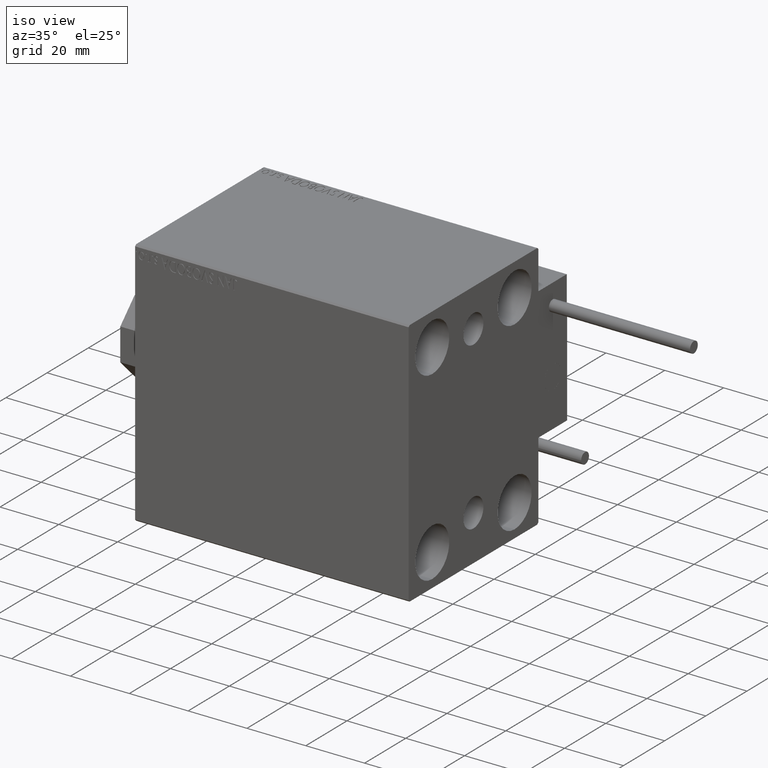
[diagram: clean part render]
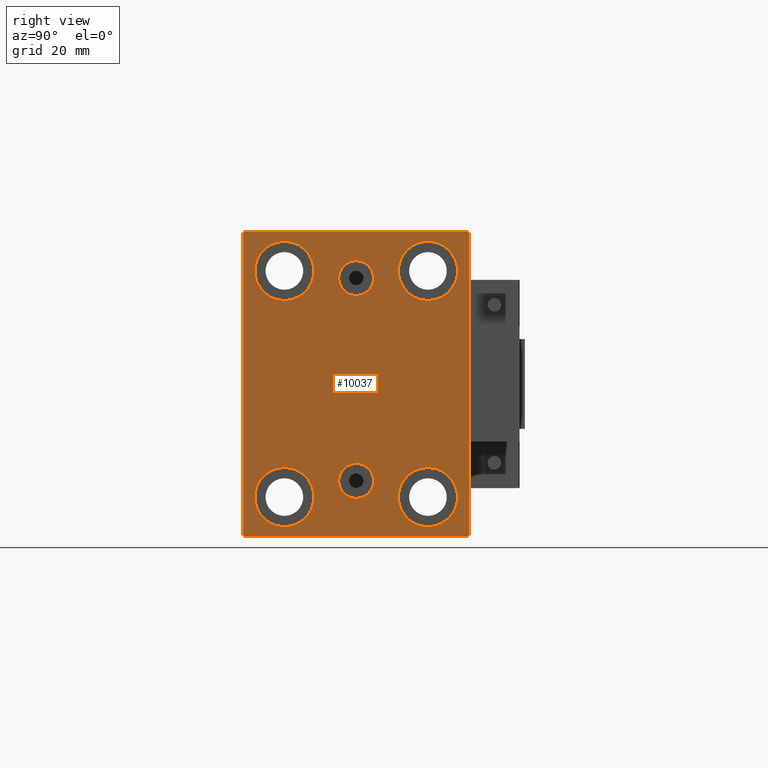
[diagram: tour spotlight — one face highlighted and labeled with its STEP entity id]
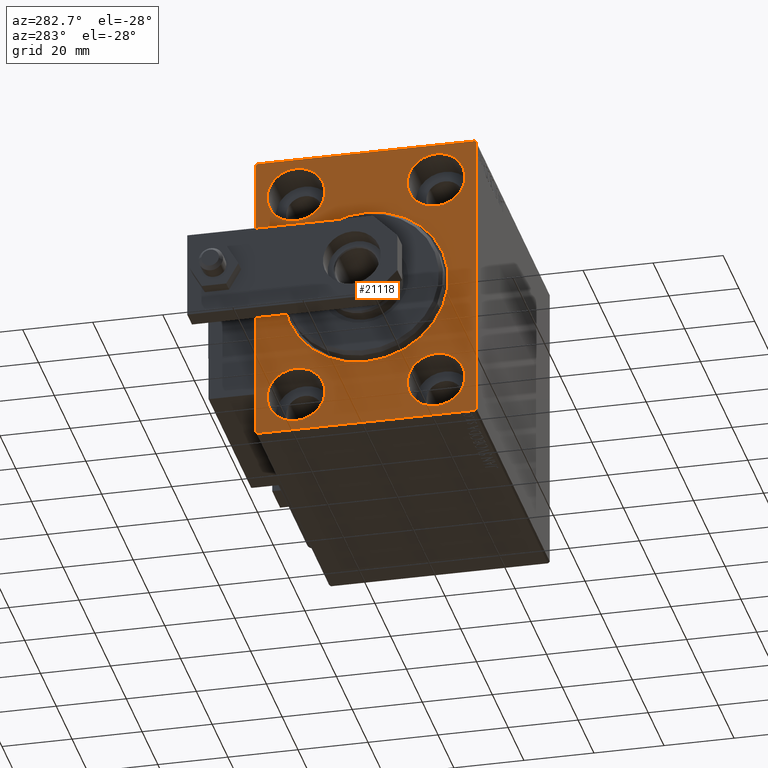
[diagram: tour spotlight — one face highlighted and labeled with its STEP entity id]
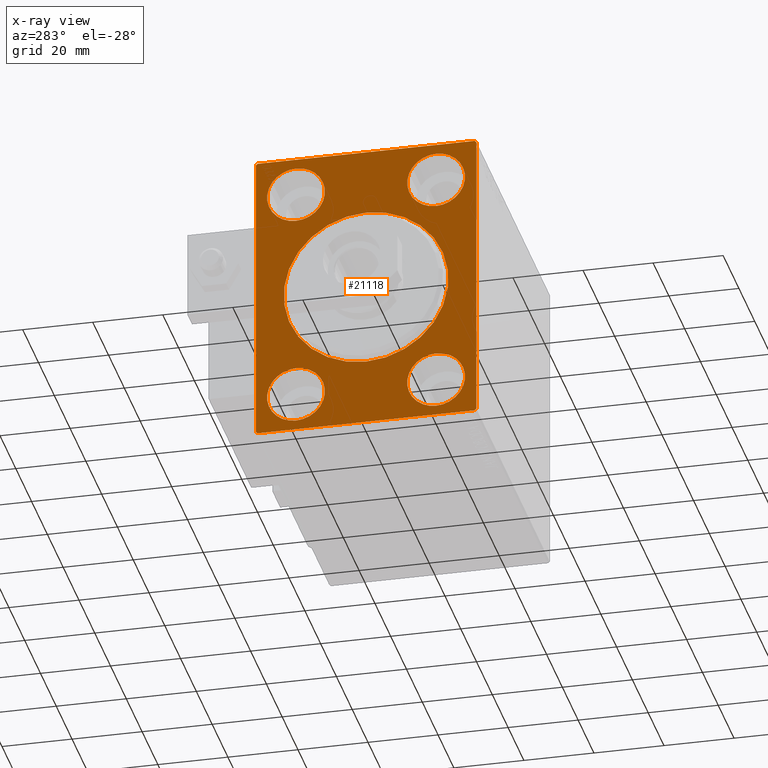
[diagram: x-ray of the same camera — body ghosted, this tour face saturated]
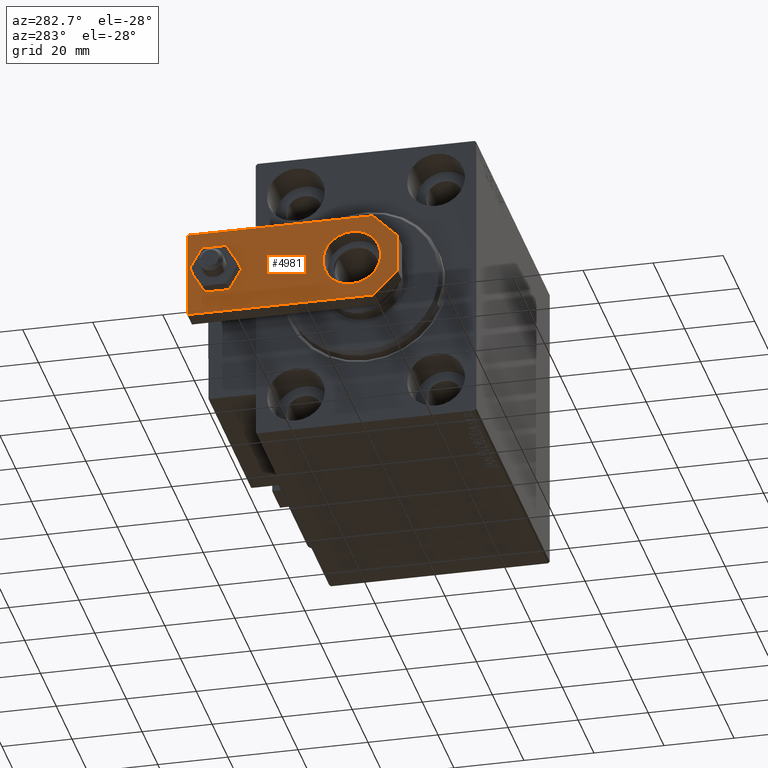
[diagram: tour spotlight — one face highlighted and labeled with its STEP entity id]
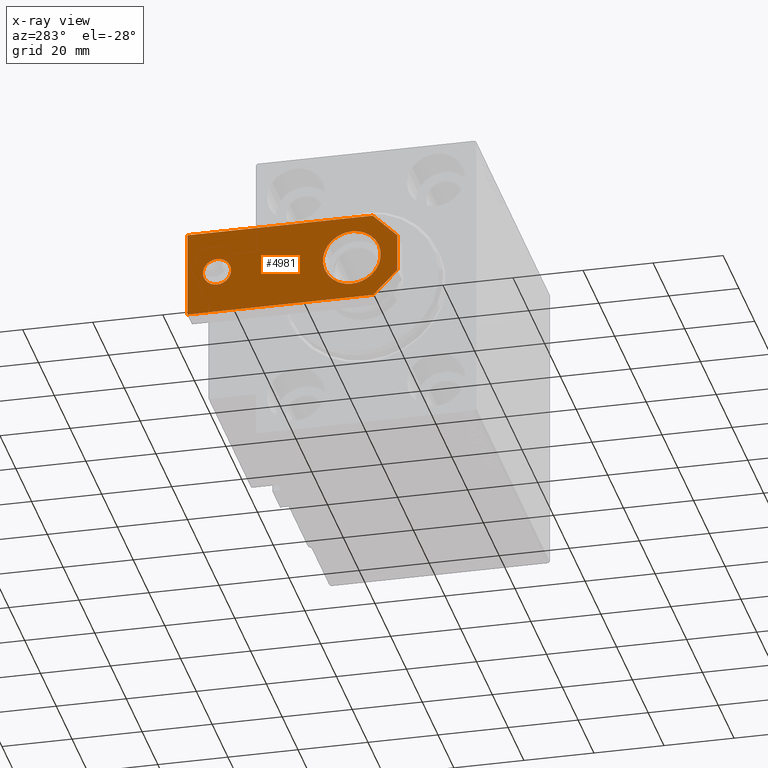
[diagram: x-ray of the same camera — body ghosted, this tour face saturated]
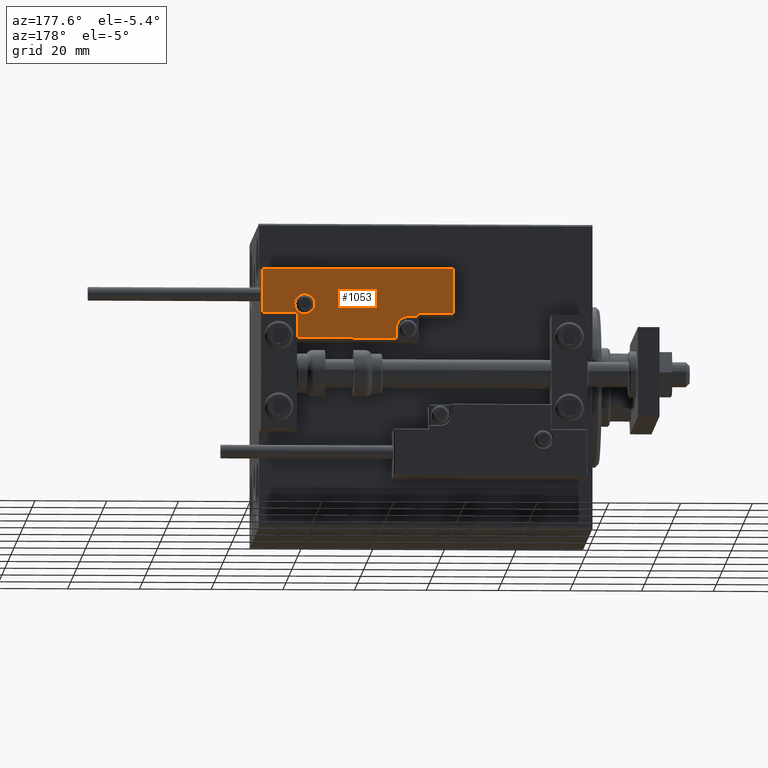
[diagram: tour spotlight — one face highlighted and labeled with its STEP entity id]
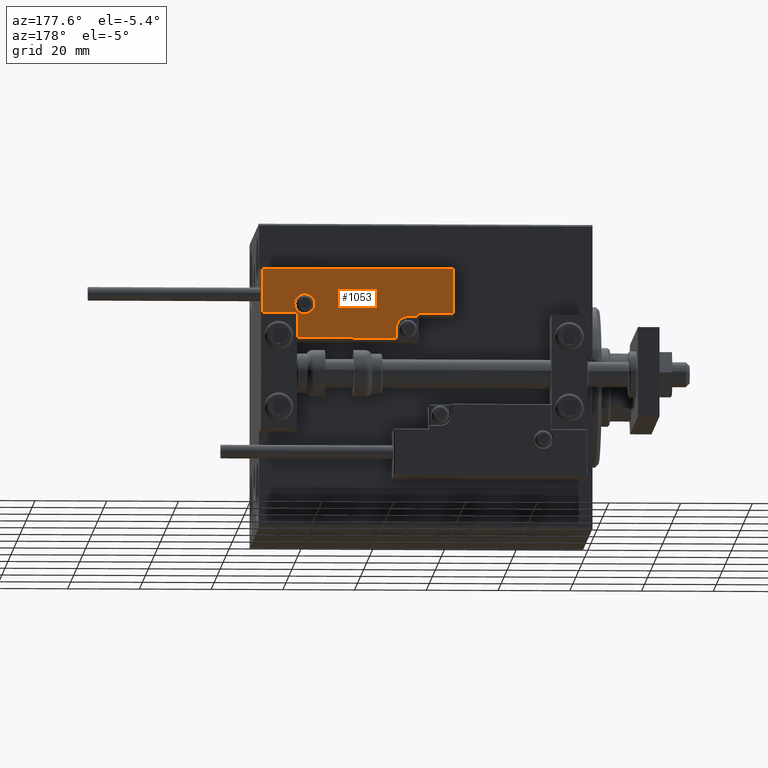
[diagram: tour spotlight — one face highlighted and labeled with its STEP entity id]
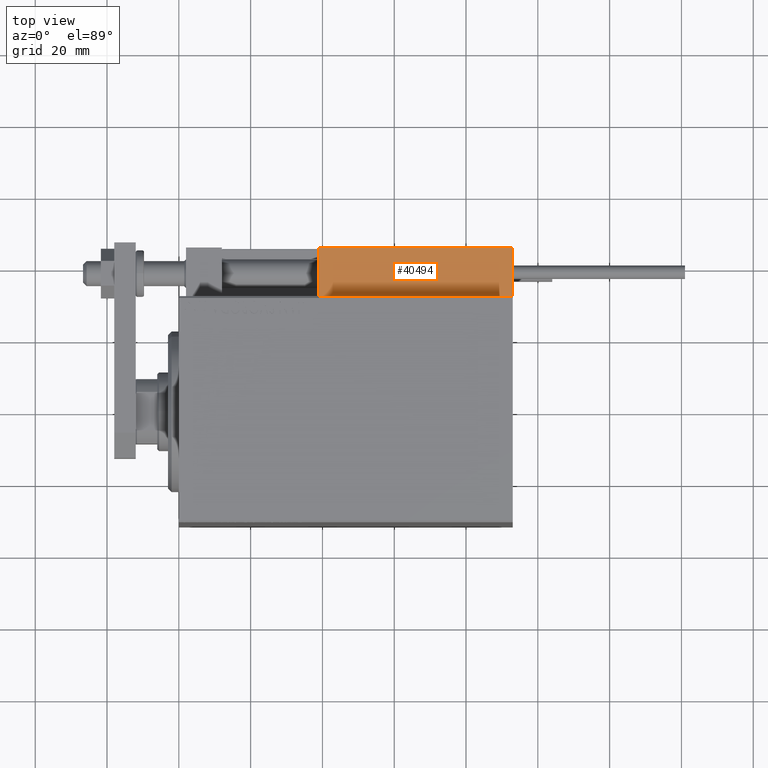
[diagram: tour spotlight — one face highlighted and labeled with its STEP entity id]
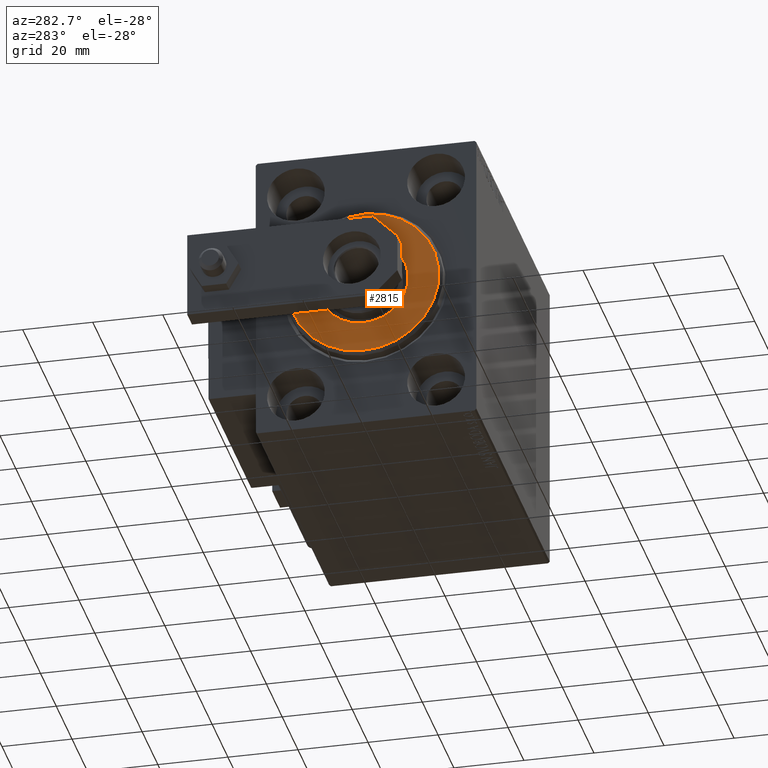
[diagram: tour spotlight — one face highlighted and labeled with its STEP entity id]
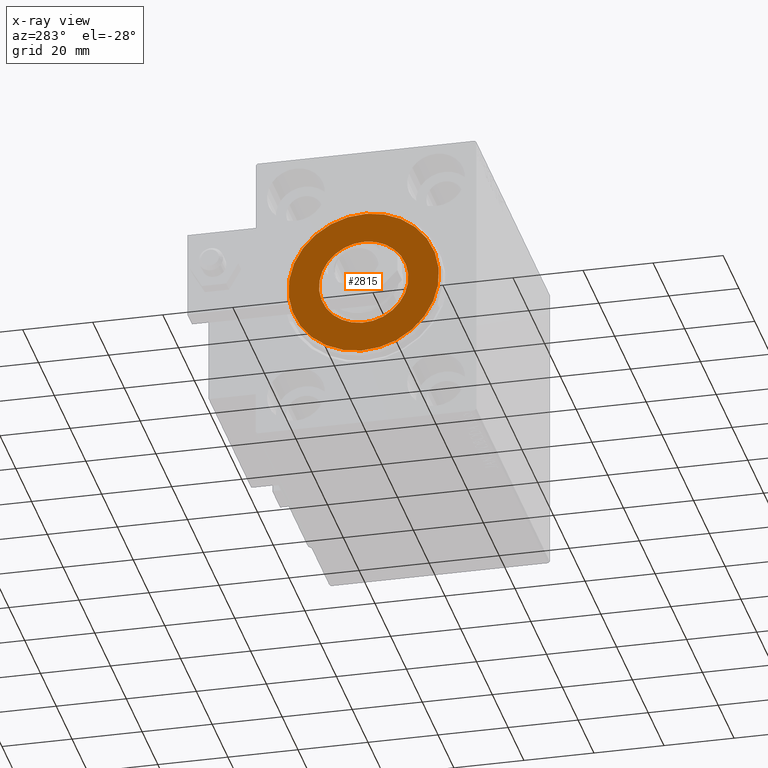
[diagram: x-ray of the same camera — body ghosted, this tour face saturated]
A machine part: a face-by-face anatomy tour. The part has 1278 B-rep faces; the first image is the clean iso view, then the 7 largest visible faces are spotlighted one at a time (largest first), each with its STEP entity span.

Face 1 — right view, entity #10037. In plain terms, the highlighted planar face has unit normal (1, 0, 0).
Definition (entity closure, byte-faithful):
#292 = CARTESIAN_POINT ( 'NONE',  ( 93.00000000000000000, -31.50000000000000000, -42.00000000000002132 ) ) ;
#335 = CARTESIAN_POINT ( 'NONE',  ( 93.00000000000000000, 31.50000000000000000, 41.99999999999999289 ) ) ;
#700 = CARTESIAN_POINT ( 'NONE',  ( 93.00000000000000000, -36.74999999999998579, 36.74999999999998579 ) ) ;
#1023 = EDGE_CURVE ( 'NONE', #12286, #48919, #22421, .T. ) ;
#1178 = CARTESIAN_POINT ( 'NONE',  ( 93.00000000000000000, -20.00000000000000355, -31.49999999999999289 ) ) ;
#1190 = LINE ( 'NONE', #700, #23470 ) ;
#1592 = DIRECTION ( 'NONE',  ( -1.000000000000000000, -0.000000000000000000, -0.000000000000000000 ) ) ;
#1595 = CARTESIAN_POINT ( 'NONE',  ( 93.00000000000000000, -19.99999999999999645, 31.50000000000000000 ) ) ;
#1712 = CARTESIAN_POINT ( 'NONE',  ( 93.00000000000000000, 31.50000000000001421, -42.50000000000000711 ) ) ;
#2276 = AXIS2_PLACEMENT_3D ( 'NONE', #32939, #6589, #2539 ) ;
#2519 = DIRECTION ( 'NONE',  ( 0.000000000000000000, -1.000000000000000000, -2.202823461557850341E-16 ) ) ;
#2539 = DIRECTION ( 'NONE',  ( 0.000000000000000000, 0.000000000000000000, 1.000000000000000000 ) ) ;
#2659 = CIRCLE ( 'NONE', #44701, 4.859999999999999432 ) ;
#2698 = FACE_BOUND ( 'NONE', #15721, .T. ) ;
#3079 = LINE ( 'NONE', #18541, #44742 ) ;
#3417 = CARTESIAN_POINT ( 'NONE',  ( 93.00000000000000000, 31.00000000000002842, -42.50000000000000711 ) ) ;
#3741 = VECTOR ( 'NONE', #25156, 1000.000000000000000 ) ;
#3857 = AXIS2_PLACEMENT_3D ( 'NONE', #34170, #7073, #15168 ) ;
#4165 = ORIENTED_EDGE ( 'NONE', *, *, #23487, .T. ) ;
#4742 = DIRECTION ( 'NONE',  ( 0.000000000000000000, -0.7071067811865474617, -0.7071067811865474617 ) ) ;
#4968 = DIRECTION ( 'NONE',  ( -1.000000000000000000, -0.000000000000000000, -0.000000000000000000 ) ) ;
#5060 = VERTEX_POINT ( 'NONE', #12074 ) ;
#5183 = CARTESIAN_POINT ( 'NONE',  ( 93.00000000000000000, -19.99999999999999645, 39.74999999999999289 ) ) ;
#5253 = CARTESIAN_POINT ( 'NONE',  ( 93.00000000000000000, 36.74999999999958789, -36.75000000000061107 ) ) ;
#5374 = CARTESIAN_POINT ( 'NONE',  ( 93.00000000000000000, 3.306546357697852550E-15, -31.85999999999998522 ) ) ;
#5462 = VERTEX_POINT ( 'NONE', #5374 ) ;
#6089 = EDGE_CURVE ( 'NONE', #13065, #6121, #48366, .T. ) ;
#6121 = VERTEX_POINT ( 'NONE', #29117 ) ;
#6170 = EDGE_LOOP ( 'NONE', ( #23145, #8247 ) ) ;
#6241 = DIRECTION ( 'NONE',  ( 1.000000000000000000, 0.000000000000000000, 0.000000000000000000 ) ) ;
#6394 = CIRCLE ( 'NONE', #41125, 8.250000000000000000 ) ;
#6402 = EDGE_CURVE ( 'NONE', #41942, #8803, #43263, .T. ) ;
#6589 = DIRECTION ( 'NONE',  ( -1.000000000000000000, -0.000000000000000000, -0.000000000000000000 ) ) ;
#6956 = ORIENTED_EDGE ( 'NONE', *, *, #49520, .T. ) ;
#7073 = DIRECTION ( 'NONE',  ( 1.000000000000000000, 0.000000000000000000, -0.000000000000000000 ) ) ;
#7141 = CARTESIAN_POINT ( 'NONE',  ( 93.00000000000000000, 20.00000000000000355, 39.74999999999999289 ) ) ;
#7625 = EDGE_CURVE ( 'NONE', #11511, #34679, #12778, .T. ) ;
#8247 = ORIENTED_EDGE ( 'NONE', *, *, #41226, .T. ) ;
#8351 = CIRCLE ( 'NONE', #16428, 8.249999999999992895 ) ;
#8576 = CARTESIAN_POINT ( 'NONE',  ( 93.00000000000000000, -3.571693674697836683E-15, 24.64000000000001123 ) ) ;
#8580 = DIRECTION ( 'NONE',  ( -0.000000000000000000, 0.7071067811865573427, 0.7071067811865376918 ) ) ;
#8726 = VECTOR ( 'NONE', #2519, 1000.000000000000000 ) ;
#8803 = VERTEX_POINT ( 'NONE', #10157 ) ;
#9230 = EDGE_CURVE ( 'NONE', #26646, #29247, #6394, .T. ) ;
#9724 = CARTESIAN_POINT ( 'NONE',  ( 93.00000000000000000, -31.50000000000000000, 42.49999999999999289 ) ) ;
#10037 = ADVANCED_FACE ( 'NONE', ( #34096, #2698, #41686, #37389, #10822, #30302, #26513 ), #33848, .T. ) ;
#10157 = CARTESIAN_POINT ( 'NONE',  ( 93.00000000000000000, 31.50000000000001421, -42.00000000000003553 ) ) ;
#10273 = AXIS2_PLACEMENT_3D ( 'NONE', #33707, #29923, #15222 ) ;
#10822 = FACE_BOUND ( 'NONE', #36667, .T. ) ;
#11511 = VERTEX_POINT ( 'NONE', #7141 ) ;
#11913 = EDGE_CURVE ( 'NONE', #19179, #41942, #39890, .T. ) ;
#12074 = CARTESIAN_POINT ( 'NONE',  ( 93.00000000000000000, -2.976515330312223011E-15, 34.36000000000000654 ) ) ;
#12286 = VERTEX_POINT ( 'NONE', #24652 ) ;
#12328 = ORIENTED_EDGE ( 'NONE', *, *, #11913, .T. ) ;
#12626 = EDGE_CURVE ( 'NONE', #34679, #11511, #32241, .T. ) ;
#12778 = CIRCLE ( 'NONE', #2276, 8.249999999999992895 ) ;
#12859 = DIRECTION ( 'NONE',  ( 0.000000000000000000, 0.000000000000000000, 1.000000000000000000 ) ) ;
#13065 = VERTEX_POINT ( 'NONE', #30405 ) ;
#13196 = DIRECTION ( 'NONE',  ( 0.000000000000000000, 0.000000000000000000, 1.000000000000000000 ) ) ;
#13565 = VECTOR ( 'NONE', #8580, 1000.000000000000114 ) ;
#13857 = CARTESIAN_POINT ( 'NONE',  ( 93.00000000000000000, 0.000000000000000000, 0.000000000000000000 ) ) ;
#14354 = DIRECTION ( 'NONE',  ( 0.000000000000000000, 0.000000000000000000, -1.000000000000000000 ) ) ;
#14374 = DIRECTION ( 'NONE',  ( 0.000000000000000000, -1.632680918566406300E-16, 1.000000000000000000 ) ) ;
#14702 = EDGE_CURVE ( 'NONE', #16493, #13065, #23947, .T. ) ;
#15069 = ORIENTED_EDGE ( 'NONE', *, *, #43958, .T. ) ;
#15168 = DIRECTION ( 'NONE',  ( 0.000000000000000000, 0.000000000000000000, 1.000000000000000000 ) ) ;
#15222 = DIRECTION ( 'NONE',  ( 0.000000000000000000, 0.000000000000000000, 1.000000000000000000 ) ) ;
#15353 = CARTESIAN_POINT ( 'NONE',  ( 93.00000000000000000, 36.75000000000044054, 36.74999999999941735 ) ) ;
#15667 = CARTESIAN_POINT ( 'NONE',  ( 93.00000000000000000, -20.00000000000000355, -39.74999999999999289 ) ) ;
#15721 = EDGE_LOOP ( 'NONE', ( #31706, #25419 ) ) ;
#15871 = CARTESIAN_POINT ( 'NONE',  ( 93.00000000000000000, -20.00000000000000355, -23.24999999999999289 ) ) ;
#15878 = CIRCLE ( 'NONE', #47451, 4.859999999999999432 ) ;
#16007 = EDGE_CURVE ( 'NONE', #6121, #36412, #1190, .T. ) ;
#16071 = AXIS2_PLACEMENT_3D ( 'NONE', #32181, #24591, #13196 ) ;
#16246 = EDGE_LOOP ( 'NONE', ( #46683, #36550 ) ) ;
#16300 = DIRECTION ( 'NONE',  ( 0.000000000000000000, 0.000000000000000000, 1.000000000000000000 ) ) ;
#16428 = AXIS2_PLACEMENT_3D ( 'NONE', #1595, #36040, #44386 ) ;
#16493 = VERTEX_POINT ( 'NONE', #335 ) ;
#17050 = LINE ( 'NONE', #9724, #3741 ) ;
#17089 = CARTESIAN_POINT ( 'NONE',  ( 93.00000000000000000, -3.571693674697836683E-15, 29.50000000000001066 ) ) ;
#17355 = CARTESIAN_POINT ( 'NONE',  ( 93.00000000000000000, -31.50000000000000000, -42.50000000000000711 ) ) ;
#17411 = CARTESIAN_POINT ( 'NONE',  ( 93.00000000000000000, -3.571693674697836683E-15, 29.50000000000001066 ) ) ;
#17917 = DIRECTION ( 'NONE',  ( 0.000000000000000000, 0.000000000000000000, -1.000000000000000000 ) ) ;
#18354 = AXIS2_PLACEMENT_3D ( 'NONE', #20365, #1592, #21099 ) ;
#18392 = CIRCLE ( 'NONE', #3857, 4.859999999999995879 ) ;
#18541 = CARTESIAN_POINT ( 'NONE',  ( 93.00000000000000000, -36.75000000000045475, -36.74999999999943867 ) ) ;
#18783 = CARTESIAN_POINT ( 'NONE',  ( 93.00000000000000000, -31.50000000000000000, 41.99999999999997868 ) ) ;
#19179 = VERTEX_POINT ( 'NONE', #27626 ) ;
#19910 = CARTESIAN_POINT ( 'NONE',  ( 93.00000000000000000, 20.00000000000000355, 23.25000000000000355 ) ) ;
#20365 = CARTESIAN_POINT ( 'NONE',  ( 93.00000000000000000, -20.00000000000000355, -31.49999999999999289 ) ) ;
#20632 = EDGE_LOOP ( 'NONE', ( #48709, #35851, #41400, #39056, #12328, #27416, #46332, #29225 ) ) ;
#20702 = CIRCLE ( 'NONE', #48198, 8.250000000000000000 ) ;
#21099 = DIRECTION ( 'NONE',  ( 0.000000000000000000, 0.000000000000000000, 1.000000000000000000 ) ) ;
#21197 = DIRECTION ( 'NONE',  ( -1.000000000000000000, -0.000000000000000000, -0.000000000000000000 ) ) ;
#22246 = VERTEX_POINT ( 'NONE', #23515 ) ;
#22421 = CIRCLE ( 'NONE', #10273, 8.250000000000000000 ) ;
#22480 = CIRCLE ( 'NONE', #45086, 8.249999999999992895 ) ;
#22482 = ORIENTED_EDGE ( 'NONE', *, *, #9230, .T. ) ;
#23019 = EDGE_CURVE ( 'NONE', #5060, #29229, #2659, .T. ) ;
#23029 = EDGE_CURVE ( 'NONE', #8803, #16493, #49058, .T. ) ;
#23145 = ORIENTED_EDGE ( 'NONE', *, *, #1023, .T. ) ;
#23470 = VECTOR ( 'NONE', #4742, 1000.000000000000114 ) ;
#23487 = EDGE_CURVE ( 'NONE', #22246, #34726, #8351, .T. ) ;
#23515 = CARTESIAN_POINT ( 'NONE',  ( 93.00000000000000000, -19.99999999999999645, 23.25000000000000355 ) ) ;
#23947 = LINE ( 'NONE', #15353, #29898 ) ;
#23986 = DIRECTION ( 'NONE',  ( 0.000000000000000000, 0.000000000000000000, 1.000000000000000000 ) ) ;
#24591 = DIRECTION ( 'NONE',  ( -1.000000000000000000, -0.000000000000000000, -0.000000000000000000 ) ) ;
#24652 = CARTESIAN_POINT ( 'NONE',  ( 93.00000000000000000, 19.99999999999999645, -39.74999999999999289 ) ) ;
#25156 = DIRECTION ( 'NONE',  ( 0.000000000000000000, 0.000000000000000000, -1.000000000000000000 ) ) ;
#25419 = ORIENTED_EDGE ( 'NONE', *, *, #45311, .F. ) ;
#25842 = CARTESIAN_POINT ( 'NONE',  ( 93.00000000000000000, 3.306546357697852550E-15, -26.99999999999998934 ) ) ;
#26513 = FACE_OUTER_BOUND ( 'NONE', #20632, .T. ) ;
#26546 = VECTOR ( 'NONE', #48244, 1000.000000000000000 ) ;
#26646 = VERTEX_POINT ( 'NONE', #15871 ) ;
#27416 = ORIENTED_EDGE ( 'NONE', *, *, #6402, .T. ) ;
#27626 = CARTESIAN_POINT ( 'NONE',  ( 93.00000000000000000, -31.00000000000002842, -42.50000000000000711 ) ) ;
#29117 = CARTESIAN_POINT ( 'NONE',  ( 93.00000000000000000, -30.99999999999998579, 42.49999999999999289 ) ) ;
#29225 = ORIENTED_EDGE ( 'NONE', *, *, #14702, .T. ) ;
#29229 = VERTEX_POINT ( 'NONE', #8576 ) ;
#29247 = VERTEX_POINT ( 'NONE', #15667 ) ;
#29898 = VECTOR ( 'NONE', #31791, 999.9999999999998863 ) ;
#29923 = DIRECTION ( 'NONE',  ( -1.000000000000000000, -0.000000000000000000, -0.000000000000000000 ) ) ;
#30302 = FACE_BOUND ( 'NONE', #36078, .T. ) ;
#30405 = CARTESIAN_POINT ( 'NONE',  ( 93.00000000000000000, 31.00000000000000000, 42.50000000000000711 ) ) ;
#30784 = CARTESIAN_POINT ( 'NONE',  ( 93.00000000000000000, 19.99999999999999645, -23.24999999999999289 ) ) ;
#31517 = EDGE_CURVE ( 'NONE', #5462, #39705, #36863, .T. ) ;
#31706 = ORIENTED_EDGE ( 'NONE', *, *, #31517, .F. ) ;
#31791 = DIRECTION ( 'NONE',  ( -0.000000000000000000, -0.7071067811865376918, 0.7071067811865574537 ) ) ;
#32181 = CARTESIAN_POINT ( 'NONE',  ( 93.00000000000000000, 20.00000000000000355, 31.50000000000000000 ) ) ;
#32201 = ORIENTED_EDGE ( 'NONE', *, *, #12626, .T. ) ;
#32241 = CIRCLE ( 'NONE', #16071, 8.249999999999992895 ) ;
#32249 = AXIS2_PLACEMENT_3D ( 'NONE', #13857, #6241, #14354 ) ;
#32939 = CARTESIAN_POINT ( 'NONE',  ( 93.00000000000000000, 20.00000000000000355, 31.50000000000000000 ) ) ;
#33707 = CARTESIAN_POINT ( 'NONE',  ( 93.00000000000000000, 19.99999999999999645, -31.49999999999999289 ) ) ;
#33848 = PLANE ( 'NONE',  #32249 ) ;
#33939 = DIRECTION ( 'NONE',  ( 1.000000000000000000, 0.000000000000000000, -0.000000000000000000 ) ) ;
#34096 = FACE_BOUND ( 'NONE', #16246, .T. ) ;
#34170 = CARTESIAN_POINT ( 'NONE',  ( 93.00000000000000000, 3.306546357697852550E-15, -26.99999999999998934 ) ) ;
#34550 = CIRCLE ( 'NONE', #18354, 8.250000000000000000 ) ;
#34679 = VERTEX_POINT ( 'NONE', #19910 ) ;
#34726 = VERTEX_POINT ( 'NONE', #5183 ) ;
#34808 = DIRECTION ( 'NONE',  ( -1.000000000000000000, -0.000000000000000000, -0.000000000000000000 ) ) ;
#35067 = EDGE_CURVE ( 'NONE', #46012, #19179, #3079, .T. ) ;
#35851 = ORIENTED_EDGE ( 'NONE', *, *, #16007, .T. ) ;
#35884 = CARTESIAN_POINT ( 'NONE',  ( 93.00000000000000000, -19.99999999999999645, 31.50000000000000000 ) ) ;
#36040 = DIRECTION ( 'NONE',  ( -1.000000000000000000, -0.000000000000000000, -0.000000000000000000 ) ) ;
#36078 = EDGE_LOOP ( 'NONE', ( #15069, #22482 ) ) ;
#36086 = DIRECTION ( 'NONE',  ( 1.000000000000000000, 0.000000000000000000, 0.000000000000000000 ) ) ;
#36412 = VERTEX_POINT ( 'NONE', #18783 ) ;
#36550 = ORIENTED_EDGE ( 'NONE', *, *, #23019, .F. ) ;
#36667 = EDGE_LOOP ( 'NONE', ( #32201, #36686 ) ) ;
#36686 = ORIENTED_EDGE ( 'NONE', *, *, #7625, .T. ) ;
#36863 = CIRCLE ( 'NONE', #46596, 4.859999999999995879 ) ;
#37157 = DIRECTION ( 'NONE',  ( 1.000000000000000000, 0.000000000000000000, 0.000000000000000000 ) ) ;
#37389 = FACE_BOUND ( 'NONE', #44474, .T. ) ;
#37462 = CARTESIAN_POINT ( 'NONE',  ( 93.00000000000000000, 31.50000000000000000, 42.50000000000000711 ) ) ;
#39056 = ORIENTED_EDGE ( 'NONE', *, *, #35067, .T. ) ;
#39705 = VERTEX_POINT ( 'NONE', #48053 ) ;
#39846 = VECTOR ( 'NONE', #14374, 1000.000000000000000 ) ;
#39890 = LINE ( 'NONE', #17355, #26546 ) ;
#41125 = AXIS2_PLACEMENT_3D ( 'NONE', #1178, #4968, #23986 ) ;
#41226 = EDGE_CURVE ( 'NONE', #48919, #12286, #20702, .T. ) ;
#41400 = ORIENTED_EDGE ( 'NONE', *, *, #42166, .T. ) ;
#41686 = FACE_BOUND ( 'NONE', #6170, .T. ) ;
#41815 = DIRECTION ( 'NONE',  ( -0.000000000000000000, 0.7071067811865376918, -0.7071067811865573427 ) ) ;
#41942 = VERTEX_POINT ( 'NONE', #3417 ) ;
#42166 = EDGE_CURVE ( 'NONE', #36412, #46012, #17050, .T. ) ;
#42718 = EDGE_CURVE ( 'NONE', #29229, #5060, #15878, .T. ) ;
#43263 = LINE ( 'NONE', #5253, #13565 ) ;
#43958 = EDGE_CURVE ( 'NONE', #29247, #26646, #34550, .T. ) ;
#44386 = DIRECTION ( 'NONE',  ( 0.000000000000000000, 0.000000000000000000, 1.000000000000000000 ) ) ;
#44436 = DIRECTION ( 'NONE',  ( 0.000000000000000000, 0.000000000000000000, -1.000000000000000000 ) ) ;
#44474 = EDGE_LOOP ( 'NONE', ( #4165, #6956 ) ) ;
#44701 = AXIS2_PLACEMENT_3D ( 'NONE', #17411, #37157, #17917 ) ;
#44742 = VECTOR ( 'NONE', #41815, 1000.000000000000114 ) ;
#45086 = AXIS2_PLACEMENT_3D ( 'NONE', #35884, #21197, #12859 ) ;
#45311 = EDGE_CURVE ( 'NONE', #39705, #5462, #18392, .T. ) ;
#46012 = VERTEX_POINT ( 'NONE', #292 ) ;
#46332 = ORIENTED_EDGE ( 'NONE', *, *, #23029, .T. ) ;
#46596 = AXIS2_PLACEMENT_3D ( 'NONE', #25842, #33939, #49382 ) ;
#46683 = ORIENTED_EDGE ( 'NONE', *, *, #42718, .F. ) ;
#47207 = CARTESIAN_POINT ( 'NONE',  ( 93.00000000000000000, 19.99999999999999645, -31.49999999999999289 ) ) ;
#47451 = AXIS2_PLACEMENT_3D ( 'NONE', #17089, #36086, #44436 ) ;
#48053 = CARTESIAN_POINT ( 'NONE',  ( 93.00000000000000000, 3.901724702083465828E-15, -22.13999999999999346 ) ) ;
#48198 = AXIS2_PLACEMENT_3D ( 'NONE', #47207, #34808, #16300 ) ;
#48244 = DIRECTION ( 'NONE',  ( 0.000000000000000000, 1.000000000000000000, 0.000000000000000000 ) ) ;
#48366 = LINE ( 'NONE', #37462, #8726 ) ;
#48709 = ORIENTED_EDGE ( 'NONE', *, *, #6089, .T. ) ;
#48919 = VERTEX_POINT ( 'NONE', #30784 ) ;
#49058 = LINE ( 'NONE', #1712, #39846 ) ;
#49382 = DIRECTION ( 'NONE',  ( 0.000000000000000000, 0.000000000000000000, 1.000000000000000000 ) ) ;
#49520 = EDGE_CURVE ( 'NONE', #34726, #22246, #22480, .T. ) ;

Face 2 — auxiliary view, entity #21118. An x-ray twin of the same camera follows (body ghosted, this face saturated) — the face is partly hidden behind the body. In plain terms, the highlighted planar face has unit normal (1, 0, 0).
Definition (entity closure, byte-faithful):
#188 = LINE ( 'NONE', #19702, #30288 ) ;
#222 = VERTEX_POINT ( 'NONE', #37447 ) ;
#419 = CARTESIAN_POINT ( 'NONE',  ( 0.000000000000000000, 19.99999999999999645, -31.49999999999999289 ) ) ;
#532 = CARTESIAN_POINT ( 'NONE',  ( 0.000000000000000000, 31.00000000000000000, 42.50000000000000711 ) ) ;
#691 = VERTEX_POINT ( 'NONE', #4617 ) ;
#907 = CARTESIAN_POINT ( 'NONE',  ( 0.000000000000000000, 31.50000000000001421, -42.00000000000003553 ) ) ;
#911 = DIRECTION ( 'NONE',  ( 0.000000000000000000, 0.000000000000000000, -1.000000000000000000 ) ) ;
#1301 = EDGE_CURVE ( 'NONE', #30237, #10219, #14319, .T. ) ;
#2162 = AXIS2_PLACEMENT_3D ( 'NONE', #14782, #30235, #7187 ) ;
#2259 = AXIS2_PLACEMENT_3D ( 'NONE', #22340, #41070, #9955 ) ;
#2614 = DIRECTION ( 'NONE',  ( 0.000000000000000000, 0.000000000000000000, 1.000000000000000000 ) ) ;
#2837 = DIRECTION ( 'NONE',  ( 0.000000000000000000, 0.000000000000000000, 1.000000000000000000 ) ) ;
#3312 = EDGE_LOOP ( 'NONE', ( #16365, #18343 ) ) ;
#3384 = EDGE_CURVE ( 'NONE', #222, #6538, #32520, .T. ) ;
#3716 = LINE ( 'NONE', #42211, #39706 ) ;
#3759 = CIRCLE ( 'NONE', #2162, 8.250000000000000000 ) ;
#4437 = EDGE_CURVE ( 'NONE', #21950, #48468, #3759, .T. ) ;
#4612 = VECTOR ( 'NONE', #8021, 999.9999999999998863 ) ;
#4617 = CARTESIAN_POINT ( 'NONE',  ( 0.000000000000000000, 31.50000000000000000, 41.99999999999999289 ) ) ;
#4634 = AXIS2_PLACEMENT_3D ( 'NONE', #15125, #26794, #46516 ) ;
#5117 = EDGE_CURVE ( 'NONE', #11554, #691, #47253, .T. ) ;
#5366 = VECTOR ( 'NONE', #32016, 1000.000000000000114 ) ;
#5807 = DIRECTION ( 'NONE',  ( 1.000000000000000000, 0.000000000000000000, 0.000000000000000000 ) ) ;
#5822 = FACE_BOUND ( 'NONE', #46576, .T. ) ;
#6078 = FACE_BOUND ( 'NONE', #3312, .T. ) ;
#6270 = CARTESIAN_POINT ( 'NONE',  ( 0.000000000000000000, -30.99999999999998579, 42.49999999999999289 ) ) ;
#6538 = VERTEX_POINT ( 'NONE', #23662 ) ;
#6827 = EDGE_CURVE ( 'NONE', #16800, #7323, #17605, .T. ) ;
#7187 = DIRECTION ( 'NONE',  ( 0.000000000000000000, 0.000000000000000000, 1.000000000000000000 ) ) ;
#7323 = VERTEX_POINT ( 'NONE', #38047 ) ;
#7706 = VERTEX_POINT ( 'NONE', #37995 ) ;
#8021 = DIRECTION ( 'NONE',  ( -0.000000000000000000, 0.7071067811865376918, -0.7071067811865574537 ) ) ;
#8526 = LINE ( 'NONE', #907, #8666 ) ;
#8666 = VECTOR ( 'NONE', #47006, 1000.000000000000114 ) ;
#9614 = EDGE_CURVE ( 'NONE', #48468, #21950, #20937, .T. ) ;
#9955 = DIRECTION ( 'NONE',  ( 0.000000000000000000, 0.000000000000000000, -1.000000000000000000 ) ) ;
#10219 = VERTEX_POINT ( 'NONE', #39135 ) ;
#10736 = EDGE_LOOP ( 'NONE', ( #30224, #17927 ) ) ;
#10805 = DIRECTION ( 'NONE',  ( -0.000000000000000000, 0.7071067811865474617, 0.7071067811865474617 ) ) ;
#11192 = CIRCLE ( 'NONE', #49997, 8.249999999999992895 ) ;
#11384 = EDGE_CURVE ( 'NONE', #45487, #12237, #11192, .T. ) ;
#11554 = VERTEX_POINT ( 'NONE', #532 ) ;
#11675 = DIRECTION ( 'NONE',  ( 0.000000000000000000, 0.000000000000000000, 1.000000000000000000 ) ) ;
#11827 = DIRECTION ( 'NONE',  ( 0.000000000000000000, -1.632680918566406300E-16, 1.000000000000000000 ) ) ;
#11836 = EDGE_CURVE ( 'NONE', #44245, #6538, #31563, .T. ) ;
#12091 = CIRCLE ( 'NONE', #22603, 8.249999999999992895 ) ;
#12237 = VERTEX_POINT ( 'NONE', #43649 ) ;
#12586 = AXIS2_PLACEMENT_3D ( 'NONE', #18864, #18102, #33548 ) ;
#12775 = ORIENTED_EDGE ( 'NONE', *, *, #6827, .F. ) ;
#13173 = DIRECTION ( 'NONE',  ( 0.000000000000000000, 0.000000000000000000, -1.000000000000000000 ) ) ;
#13593 = ORIENTED_EDGE ( 'NONE', *, *, #3384, .T. ) ;
#13629 = EDGE_CURVE ( 'NONE', #26668, #32854, #12091, .T. ) ;
#13916 = CARTESIAN_POINT ( 'NONE',  ( 0.000000000000000000, -20.00000000000000355, -39.74999999999999289 ) ) ;
#13934 = FACE_OUTER_BOUND ( 'NONE', #15063, .T. ) ;
#14063 = VECTOR ( 'NONE', #10805, 1000.000000000000114 ) ;
#14186 = FACE_BOUND ( 'NONE', #31075, .T. ) ;
#14200 = ORIENTED_EDGE ( 'NONE', *, *, #37343, .F. ) ;
#14319 = CIRCLE ( 'NONE', #40175, 23.50000000000001776 ) ;
#14782 = CARTESIAN_POINT ( 'NONE',  ( 0.000000000000000000, -20.00000000000000355, -31.49999999999999289 ) ) ;
#15063 = EDGE_LOOP ( 'NONE', ( #32661, #15560, #14200, #40836, #33084, #47223, #48564, #13593 ) ) ;
#15125 = CARTESIAN_POINT ( 'NONE',  ( 0.000000000000000000, -19.99999999999999645, 31.50000000000000000 ) ) ;
#15560 = ORIENTED_EDGE ( 'NONE', *, *, #36010, .T. ) ;
#16365 = ORIENTED_EDGE ( 'NONE', *, *, #40020, .F. ) ;
#16367 = CARTESIAN_POINT ( 'NONE',  ( 0.000000000000000000, 20.00000000000000355, 23.25000000000000355 ) ) ;
#16479 = CARTESIAN_POINT ( 'NONE',  ( 0.000000000000000000, -31.50000000000000000, 41.99999999999997868 ) ) ;
#16800 = VERTEX_POINT ( 'NONE', #30669 ) ;
#17049 = CIRCLE ( 'NONE', #36456, 8.250000000000000000 ) ;
#17531 = DIRECTION ( 'NONE',  ( -1.000000000000000000, 0.000000000000000000, 0.000000000000000000 ) ) ;
#17605 = CIRCLE ( 'NONE', #21616, 8.250000000000000000 ) ;
#17927 = ORIENTED_EDGE ( 'NONE', *, *, #47767, .F. ) ;
#18102 = DIRECTION ( 'NONE',  ( -1.000000000000000000, 0.000000000000000000, 0.000000000000000000 ) ) ;
#18259 = EDGE_CURVE ( 'NONE', #45898, #691, #3716, .T. ) ;
#18309 = EDGE_CURVE ( 'NONE', #7323, #16800, #17049, .T. ) ;
#18343 = ORIENTED_EDGE ( 'NONE', *, *, #13629, .F. ) ;
#18479 = VECTOR ( 'NONE', #911, 1000.000000000000000 ) ;
#18864 = CARTESIAN_POINT ( 'NONE',  ( 0.000000000000000000, 20.00000000000000355, 31.50000000000000000 ) ) ;
#19280 = DIRECTION ( 'NONE',  ( -1.000000000000000000, 0.000000000000000000, 0.000000000000000000 ) ) ;
#19677 = CARTESIAN_POINT ( 'NONE',  ( 0.000000000000000000, 31.00000000000000000, 42.50000000000000711 ) ) ;
#19702 = CARTESIAN_POINT ( 'NONE',  ( 0.000000000000000000, 31.50000000000000000, 42.50000000000000711 ) ) ;
#20937 = CIRCLE ( 'NONE', #49231, 8.250000000000000000 ) ;
#21118 = ADVANCED_FACE ( 'NONE', ( #5822, #44566, #40760, #6078, #14186, #13934 ), #21536, .F. ) ;
#21346 = CARTESIAN_POINT ( 'NONE',  ( 0.000000000000000000, 31.50000000000001421, -42.00000000000003553 ) ) ;
#21536 = PLANE ( 'NONE',  #47888 ) ;
#21616 = AXIS2_PLACEMENT_3D ( 'NONE', #37283, #22096, #2837 ) ;
#21846 = CARTESIAN_POINT ( 'NONE',  ( 0.000000000000000000, 2.877919977996282293E-15, -23.50000000000001776 ) ) ;
#21950 = VERTEX_POINT ( 'NONE', #13916 ) ;
#22096 = DIRECTION ( 'NONE',  ( -1.000000000000000000, 0.000000000000000000, 0.000000000000000000 ) ) ;
#22187 = CARTESIAN_POINT ( 'NONE',  ( 0.000000000000000000, -31.50000000000000000, 41.99999999999997868 ) ) ;
#22340 = CARTESIAN_POINT ( 'NONE',  ( 0.000000000000000000, 0.000000000000000000, 0.000000000000000000 ) ) ;
#22603 = AXIS2_PLACEMENT_3D ( 'NONE', #35384, #31590, #28284 ) ;
#22696 = ORIENTED_EDGE ( 'NONE', *, *, #9614, .F. ) ;
#23492 = EDGE_LOOP ( 'NONE', ( #42192, #12775 ) ) ;
#23662 = CARTESIAN_POINT ( 'NONE',  ( 0.000000000000000000, -31.50000000000000000, -42.00000000000002132 ) ) ;
#25064 = CARTESIAN_POINT ( 'NONE',  ( 0.000000000000000000, 0.000000000000000000, 0.000000000000000000 ) ) ;
#25495 = ORIENTED_EDGE ( 'NONE', *, *, #1301, .T. ) ;
#25839 = DIRECTION ( 'NONE',  ( 1.000000000000000000, 0.000000000000000000, 0.000000000000000000 ) ) ;
#26668 = VERTEX_POINT ( 'NONE', #16367 ) ;
#26794 = DIRECTION ( 'NONE',  ( -1.000000000000000000, 0.000000000000000000, 0.000000000000000000 ) ) ;
#28006 = CARTESIAN_POINT ( 'NONE',  ( 0.000000000000000000, -31.50000000000000000, 42.49999999999999289 ) ) ;
#28284 = DIRECTION ( 'NONE',  ( 0.000000000000000000, 0.000000000000000000, 1.000000000000000000 ) ) ;
#29676 = CARTESIAN_POINT ( 'NONE',  ( 0.000000000000000000, -19.99999999999999645, 31.50000000000000000 ) ) ;
#30224 = ORIENTED_EDGE ( 'NONE', *, *, #11384, .F. ) ;
#30235 = DIRECTION ( 'NONE',  ( -1.000000000000000000, 0.000000000000000000, 0.000000000000000000 ) ) ;
#30237 = VERTEX_POINT ( 'NONE', #21846 ) ;
#30288 = VECTOR ( 'NONE', #43220, 1000.000000000000000 ) ;
#30669 = CARTESIAN_POINT ( 'NONE',  ( 0.000000000000000000, 19.99999999999999645, -39.74999999999999289 ) ) ;
#31075 = EDGE_LOOP ( 'NONE', ( #22696, #33225 ) ) ;
#31305 = DIRECTION ( 'NONE',  ( -1.000000000000000000, 0.000000000000000000, 0.000000000000000000 ) ) ;
#31563 = LINE ( 'NONE', #28006, #18479 ) ;
#31590 = DIRECTION ( 'NONE',  ( -1.000000000000000000, 0.000000000000000000, 0.000000000000000000 ) ) ;
#32016 = DIRECTION ( 'NONE',  ( -0.000000000000000000, -0.7071067811865376918, 0.7071067811865573427 ) ) ;
#32520 = LINE ( 'NONE', #42923, #5366 ) ;
#32661 = ORIENTED_EDGE ( 'NONE', *, *, #11836, .F. ) ;
#32854 = VERTEX_POINT ( 'NONE', #39052 ) ;
#33084 = ORIENTED_EDGE ( 'NONE', *, *, #18259, .F. ) ;
#33225 = ORIENTED_EDGE ( 'NONE', *, *, #4437, .F. ) ;
#33548 = DIRECTION ( 'NONE',  ( 0.000000000000000000, 0.000000000000000000, 1.000000000000000000 ) ) ;
#34403 = CIRCLE ( 'NONE', #12586, 8.249999999999992895 ) ;
#34948 = CARTESIAN_POINT ( 'NONE',  ( 0.000000000000000000, -20.00000000000000355, -31.49999999999999289 ) ) ;
#35384 = CARTESIAN_POINT ( 'NONE',  ( 0.000000000000000000, 20.00000000000000355, 31.50000000000000000 ) ) ;
#35409 = CARTESIAN_POINT ( 'NONE',  ( 0.000000000000000000, -19.99999999999999645, 39.74999999999999289 ) ) ;
#36010 = EDGE_CURVE ( 'NONE', #44245, #47588, #41669, .T. ) ;
#36456 = AXIS2_PLACEMENT_3D ( 'NONE', #419, #31305, #2614 ) ;
#36792 = ORIENTED_EDGE ( 'NONE', *, *, #45885, .T. ) ;
#37283 = CARTESIAN_POINT ( 'NONE',  ( 0.000000000000000000, 19.99999999999999645, -31.49999999999999289 ) ) ;
#37343 = EDGE_CURVE ( 'NONE', #11554, #47588, #188, .T. ) ;
#37447 = CARTESIAN_POINT ( 'NONE',  ( 0.000000000000000000, -31.00000000000002842, -42.50000000000000711 ) ) ;
#37995 = CARTESIAN_POINT ( 'NONE',  ( 0.000000000000000000, 31.00000000000002842, -42.50000000000000711 ) ) ;
#38047 = CARTESIAN_POINT ( 'NONE',  ( 0.000000000000000000, 19.99999999999999645, -23.24999999999999289 ) ) ;
#39052 = CARTESIAN_POINT ( 'NONE',  ( 0.000000000000000000, 20.00000000000000355, 39.74999999999999289 ) ) ;
#39135 = CARTESIAN_POINT ( 'NONE',  ( 0.000000000000000000, 0.000000000000000000, 23.50000000000001776 ) ) ;
#39450 = CIRCLE ( 'NONE', #2259, 23.50000000000001776 ) ;
#39706 = VECTOR ( 'NONE', #11827, 1000.000000000000000 ) ;
#40020 = EDGE_CURVE ( 'NONE', #32854, #26668, #34403, .T. ) ;
#40175 = AXIS2_PLACEMENT_3D ( 'NONE', #25064, #5807, #13173 ) ;
#40260 = DIRECTION ( 'NONE',  ( 0.000000000000000000, 0.000000000000000000, -1.000000000000000000 ) ) ;
#40760 = FACE_BOUND ( 'NONE', #10736, .T. ) ;
#40819 = DIRECTION ( 'NONE',  ( 0.000000000000000000, 1.000000000000000000, 0.000000000000000000 ) ) ;
#40836 = ORIENTED_EDGE ( 'NONE', *, *, #5117, .T. ) ;
#40993 = CIRCLE ( 'NONE', #4634, 8.249999999999992895 ) ;
#41010 = CARTESIAN_POINT ( 'NONE',  ( 0.000000000000000000, 0.000000000000000000, 0.000000000000000000 ) ) ;
#41070 = DIRECTION ( 'NONE',  ( 1.000000000000000000, 0.000000000000000000, 0.000000000000000000 ) ) ;
#41320 = DIRECTION ( 'NONE',  ( 0.000000000000000000, 0.000000000000000000, 1.000000000000000000 ) ) ;
#41669 = LINE ( 'NONE', #22187, #14063 ) ;
#42192 = ORIENTED_EDGE ( 'NONE', *, *, #18309, .F. ) ;
#42211 = CARTESIAN_POINT ( 'NONE',  ( 0.000000000000000000, 31.50000000000001421, -42.50000000000000711 ) ) ;
#42923 = CARTESIAN_POINT ( 'NONE',  ( 0.000000000000000000, -31.00000000000002842, -42.50000000000000711 ) ) ;
#43220 = DIRECTION ( 'NONE',  ( 0.000000000000000000, -1.000000000000000000, -2.202823461557850341E-16 ) ) ;
#43431 = EDGE_CURVE ( 'NONE', #45898, #7706, #8526, .T. ) ;
#43649 = CARTESIAN_POINT ( 'NONE',  ( 0.000000000000000000, -19.99999999999999645, 23.25000000000000355 ) ) ;
#44041 = EDGE_CURVE ( 'NONE', #222, #7706, #49685, .T. ) ;
#44245 = VERTEX_POINT ( 'NONE', #16479 ) ;
#44566 = FACE_BOUND ( 'NONE', #23492, .T. ) ;
#45285 = CARTESIAN_POINT ( 'NONE',  ( 0.000000000000000000, -20.00000000000000355, -23.24999999999999289 ) ) ;
#45487 = VERTEX_POINT ( 'NONE', #35409 ) ;
#45885 = EDGE_CURVE ( 'NONE', #10219, #30237, #39450, .T. ) ;
#45889 = CARTESIAN_POINT ( 'NONE',  ( 0.000000000000000000, -31.50000000000000000, -42.50000000000000711 ) ) ;
#45898 = VERTEX_POINT ( 'NONE', #21346 ) ;
#46516 = DIRECTION ( 'NONE',  ( 0.000000000000000000, 0.000000000000000000, 1.000000000000000000 ) ) ;
#46576 = EDGE_LOOP ( 'NONE', ( #36792, #25495 ) ) ;
#47006 = DIRECTION ( 'NONE',  ( 0.000000000000000000, -0.7071067811865573427, -0.7071067811865376918 ) ) ;
#47223 = ORIENTED_EDGE ( 'NONE', *, *, #43431, .T. ) ;
#47253 = LINE ( 'NONE', #19677, #4612 ) ;
#47588 = VERTEX_POINT ( 'NONE', #6270 ) ;
#47767 = EDGE_CURVE ( 'NONE', #12237, #45487, #40993, .T. ) ;
#47888 = AXIS2_PLACEMENT_3D ( 'NONE', #41010, #25839, #40260 ) ;
#48468 = VERTEX_POINT ( 'NONE', #45285 ) ;
#48564 = ORIENTED_EDGE ( 'NONE', *, *, #44041, .F. ) ;
#49231 = AXIS2_PLACEMENT_3D ( 'NONE', #34948, #19280, #11675 ) ;
#49685 = LINE ( 'NONE', #45889, #49903 ) ;
#49903 = VECTOR ( 'NONE', #40819, 1000.000000000000000 ) ;
#49997 = AXIS2_PLACEMENT_3D ( 'NONE', #29676, #17531, #41320 ) ;

Face 3 — auxiliary view, entity #4981. An x-ray twin of the same camera follows (body ghosted, this face saturated) — the face is partly hidden behind the body. In plain terms, the highlighted planar face has unit normal (-1, 0, 0).
Definition (entity closure, byte-faithful):
#1353 = VERTEX_POINT ( 'NONE', #6310 ) ;
#1953 = DIRECTION ( 'NONE',  ( 1.000000000000000000, 0.000000000000000000, 0.000000000000000000 ) ) ;
#2145 = VECTOR ( 'NONE', #19306, 1000.000000000000000 ) ;
#2200 = VECTOR ( 'NONE', #28793, 1000.000000000000000 ) ;
#2227 = ORIENTED_EDGE ( 'NONE', *, *, #43204, .T. ) ;
#2661 = AXIS2_PLACEMENT_3D ( 'NONE', #48780, #40162, #17133 ) ;
#2826 = ORIENTED_EDGE ( 'NONE', *, *, #22612, .F. ) ;
#3109 = CIRCLE ( 'NONE', #23325, 8.250000000000000000 ) ;
#3400 = DIRECTION ( 'NONE',  ( 0.000000000000000000, 0.000000000000000000, 1.000000000000000000 ) ) ;
#3439 = CARTESIAN_POINT ( 'NONE',  ( 12.50000000000000355, 60.00000000000000000, 6.000000000000000000 ) ) ;
#3707 = CARTESIAN_POINT ( 'NONE',  ( -12.49999999999999822, 60.00000000000000000, 6.000000000000000000 ) ) ;
#3839 = CARTESIAN_POINT ( 'NONE',  ( -2.750000000000013767, -2.750000000000005773, 6.000000000000000000 ) ) ;
#4338 = DIRECTION ( 'NONE',  ( 0.7071067811865486830, 0.7071067811865464625, -0.000000000000000000 ) ) ;
#4659 = DIRECTION ( 'NONE',  ( 0.000000000000000000, 0.000000000000000000, 1.000000000000000000 ) ) ;
#4958 = EDGE_CURVE ( 'NONE', #22256, #11948, #25009, .T. ) ;
#4981 = ADVANCED_FACE ( 'NONE', ( #40688, #17150, #17401 ), #28546, .T. ) ;
#5151 = ORIENTED_EDGE ( 'NONE', *, *, #6846, .T. ) ;
#5946 = CARTESIAN_POINT ( 'NONE',  ( -4.000000000000000888, 51.50000000000000000, 6.000000000000000000 ) ) ;
#6067 = DIRECTION ( 'NONE',  ( 1.000000000000000000, 0.000000000000000000, 0.000000000000000000 ) ) ;
#6310 = CARTESIAN_POINT ( 'NONE',  ( -12.49999999999999822, 60.00000000000000000, 6.000000000000000000 ) ) ;
#6419 = AXIS2_PLACEMENT_3D ( 'NONE', #6816, #37204, #6067 ) ;
#6816 = CARTESIAN_POINT ( 'NONE',  ( -9.629649721936179265E-32, 12.99999999999999822, 6.000000000000000000 ) ) ;
#6846 = EDGE_CURVE ( 'NONE', #11948, #12597, #42340, .T. ) ;
#7525 = VECTOR ( 'NONE', #30561, 1000.000000000000000 ) ;
#7989 = CARTESIAN_POINT ( 'NONE',  ( -9.629649721936179265E-32, 12.99999999999999822, 6.000000000000000000 ) ) ;
#8106 = CARTESIAN_POINT ( 'NONE',  ( -12.50000000000000355, 7.000000000000013323, 6.000000000000000000 ) ) ;
#8129 = EDGE_CURVE ( 'NONE', #34477, #41681, #3109, .T. ) ;
#8319 = CIRCLE ( 'NONE', #13980, 4.000000000000000888 ) ;
#8742 = ORIENTED_EDGE ( 'NONE', *, *, #22403, .T. ) ;
#8963 = ORIENTED_EDGE ( 'NONE', *, *, #48079, .T. ) ;
#9650 = CARTESIAN_POINT ( 'NONE',  ( 12.50000000000000355, 7.000000000000006217, 6.000000000000000000 ) ) ;
#10791 = DIRECTION ( 'NONE',  ( 0.000000000000000000, 1.000000000000000000, 0.000000000000000000 ) ) ;
#11133 = ORIENTED_EDGE ( 'NONE', *, *, #40040, .T. ) ;
#11278 = DIRECTION ( 'NONE',  ( 1.000000000000000000, 0.000000000000000000, 0.000000000000000000 ) ) ;
#11948 = VERTEX_POINT ( 'NONE', #21413 ) ;
#12517 = DIRECTION ( 'NONE',  ( -1.000000000000000000, 0.000000000000000000, 0.000000000000000000 ) ) ;
#12597 = VERTEX_POINT ( 'NONE', #9650 ) ;
#13354 = CARTESIAN_POINT ( 'NONE',  ( -8.250000000000000000, 12.99999999999999822, 6.000000000000000000 ) ) ;
#13980 = AXIS2_PLACEMENT_3D ( 'NONE', #26710, #3400, #11278 ) ;
#14685 = ORIENTED_EDGE ( 'NONE', *, *, #15420, .F. ) ;
#14821 = LINE ( 'NONE', #18373, #40194 ) ;
#15420 = EDGE_CURVE ( 'NONE', #41681, #34477, #20222, .T. ) ;
#15718 = VERTEX_POINT ( 'NONE', #5946 ) ;
#17133 = DIRECTION ( 'NONE',  ( 1.000000000000000000, 0.000000000000000000, 0.000000000000000000 ) ) ;
#17150 = FACE_OUTER_BOUND ( 'NONE', #46185, .T. ) ;
#17401 = FACE_BOUND ( 'NONE', #35370, .T. ) ;
#18373 = CARTESIAN_POINT ( 'NONE',  ( 12.50000000000000355, 4.814824860968089633E-32, 6.000000000000000000 ) ) ;
#19306 = DIRECTION ( 'NONE',  ( 0.7071067811865465735, -0.7071067811865485719, 0.000000000000000000 ) ) ;
#20222 = CIRCLE ( 'NONE', #6419, 8.250000000000000000 ) ;
#20800 = ORIENTED_EDGE ( 'NONE', *, *, #4958, .T. ) ;
#21358 = ORIENTED_EDGE ( 'NONE', *, *, #8129, .F. ) ;
#21413 = CARTESIAN_POINT ( 'NONE',  ( 5.499999999999976907, 4.814824860968089633E-32, 6.000000000000000000 ) ) ;
#22256 = VERTEX_POINT ( 'NONE', #27810 ) ;
#22403 = EDGE_CURVE ( 'NONE', #1353, #37020, #46254, .T. ) ;
#22424 = AXIS2_PLACEMENT_3D ( 'NONE', #44241, #24506, #1953 ) ;
#22612 = EDGE_CURVE ( 'NONE', #15718, #40021, #8319, .T. ) ;
#22842 = LINE ( 'NONE', #3839, #2145 ) ;
#23325 = AXIS2_PLACEMENT_3D ( 'NONE', #7989, #4659, #43166 ) ;
#24506 = DIRECTION ( 'NONE',  ( -0.000000000000000000, 0.000000000000000000, 1.000000000000000000 ) ) ;
#25009 = LINE ( 'NONE', #40179, #2200 ) ;
#26710 = CARTESIAN_POINT ( 'NONE',  ( -1.432611055310774642E-16, 51.50000000000000000, 6.000000000000000000 ) ) ;
#27810 = CARTESIAN_POINT ( 'NONE',  ( -5.500000000000010658, 4.814824860968089633E-32, 6.000000000000000000 ) ) ;
#28546 = PLANE ( 'NONE',  #22424 ) ;
#28793 = DIRECTION ( 'NONE',  ( 1.000000000000000000, 0.000000000000000000, 0.000000000000000000 ) ) ;
#30389 = CARTESIAN_POINT ( 'NONE',  ( 8.250000000000000000, 13.00000000000000000, 6.000000000000000000 ) ) ;
#30561 = DIRECTION ( 'NONE',  ( -8.673617379884035472E-17, -1.000000000000000000, 0.000000000000000000 ) ) ;
#31000 = CARTESIAN_POINT ( 'NONE',  ( 12.50000000000000355, 60.00000000000000000, 6.000000000000000000 ) ) ;
#31499 = LINE ( 'NONE', #31000, #40845 ) ;
#33498 = EDGE_CURVE ( 'NONE', #40021, #15718, #46340, .T. ) ;
#34477 = VERTEX_POINT ( 'NONE', #13354 ) ;
#34744 = CARTESIAN_POINT ( 'NONE',  ( 2.749999999999980016, -2.749999999999988010, 6.000000000000000000 ) ) ;
#35370 = EDGE_LOOP ( 'NONE', ( #21358, #14685 ) ) ;
#37020 = VERTEX_POINT ( 'NONE', #8106 ) ;
#37123 = EDGE_LOOP ( 'NONE', ( #2826, #41542 ) ) ;
#37204 = DIRECTION ( 'NONE',  ( 0.000000000000000000, 0.000000000000000000, 1.000000000000000000 ) ) ;
#39174 = VERTEX_POINT ( 'NONE', #3439 ) ;
#40021 = VERTEX_POINT ( 'NONE', #48991 ) ;
#40040 = EDGE_CURVE ( 'NONE', #39174, #1353, #31499, .T. ) ;
#40162 = DIRECTION ( 'NONE',  ( 0.000000000000000000, 0.000000000000000000, 1.000000000000000000 ) ) ;
#40179 = CARTESIAN_POINT ( 'NONE',  ( -12.50000000000000355, 4.814824860968089633E-32, 6.000000000000000000 ) ) ;
#40194 = VECTOR ( 'NONE', #10791, 1000.000000000000000 ) ;
#40688 = FACE_BOUND ( 'NONE', #37123, .T. ) ;
#40845 = VECTOR ( 'NONE', #12517, 1000.000000000000000 ) ;
#41542 = ORIENTED_EDGE ( 'NONE', *, *, #33498, .F. ) ;
#41681 = VERTEX_POINT ( 'NONE', #30389 ) ;
#42340 = LINE ( 'NONE', #34744, #49922 ) ;
#43166 = DIRECTION ( 'NONE',  ( 1.000000000000000000, 0.000000000000000000, 0.000000000000000000 ) ) ;
#43204 = EDGE_CURVE ( 'NONE', #37020, #22256, #22842, .T. ) ;
#44241 = CARTESIAN_POINT ( 'NONE',  ( 0.000000000000000000, 0.000000000000000000, 6.000000000000000000 ) ) ;
#46185 = EDGE_LOOP ( 'NONE', ( #8742, #2227, #20800, #5151, #8963, #11133 ) ) ;
#46254 = LINE ( 'NONE', #3707, #7525 ) ;
#46340 = CIRCLE ( 'NONE', #2661, 4.000000000000000888 ) ;
#48079 = EDGE_CURVE ( 'NONE', #12597, #39174, #14821, .T. ) ;
#48780 = CARTESIAN_POINT ( 'NONE',  ( -1.432611055310774642E-16, 51.50000000000000000, 6.000000000000000000 ) ) ;
#48991 = CARTESIAN_POINT ( 'NONE',  ( 4.000000000000000888, 51.50000000000000000, 6.000000000000000000 ) ) ;
#49922 = VECTOR ( 'NONE', #4338, 999.9999999999998863 ) ;

Face 4 — auxiliary view, entity #1053. In plain terms, the highlighted planar face has unit normal (-0, 1, -0).
Definition (entity closure, byte-faithful):
#441 = EDGE_CURVE ( 'NONE', #1184, #23250, #39127, .T. ) ;
#797 = CARTESIAN_POINT ( 'NONE',  ( -26.69999999999994600, 7.000000000000005329, 14.00000000000000000 ) ) ;
#866 = CARTESIAN_POINT ( 'NONE',  ( 26.70000000000006324, 7.300000000000007816, 14.00000000000000000 ) ) ;
#1012 = DIRECTION ( 'NONE',  ( -0.000000000000000000, 0.000000000000000000, 1.000000000000000000 ) ) ;
#1053 = ADVANCED_FACE ( 'NONE', ( #11689, #15470 ), #38761, .T. ) ;
#1184 = VERTEX_POINT ( 'NONE', #39248 ) ;
#1351 = DIRECTION ( 'NONE',  ( 0.000000000000000000, -0.000000000000000000, -1.000000000000000000 ) ) ;
#1534 = DIRECTION ( 'NONE',  ( 1.000000000000000000, -1.734723475976796001E-16, 0.000000000000000000 ) ) ;
#1602 = CARTESIAN_POINT ( 'NONE',  ( -14.79999999999994920, 9.800000000000004263, 14.00000000000000000 ) ) ;
#1643 = EDGE_CURVE ( 'NONE', #29202, #23263, #30528, .T. ) ;
#1849 = VERTEX_POINT ( 'NONE', #866 ) ;
#2071 = VECTOR ( 'NONE', #17533, 1000.000000000000000 ) ;
#2878 = DIRECTION ( 'NONE',  ( 1.000000000000000000, 5.782411586589357639E-16, -0.000000000000000000 ) ) ;
#2921 = VECTOR ( 'NONE', #38788, 1000.000000000000000 ) ;
#3117 = VERTEX_POINT ( 'NONE', #47341 ) ;
#4150 = LINE ( 'NONE', #35282, #39162 ) ;
#4299 = ORIENTED_EDGE ( 'NONE', *, *, #30461, .T. ) ;
#4705 = ORIENTED_EDGE ( 'NONE', *, *, #40212, .T. ) ;
#4779 = CARTESIAN_POINT ( 'NONE',  ( 13.99999999999999822, 6.300000000000001599, 14.00000000000000000 ) ) ;
#5371 = ORIENTED_EDGE ( 'NONE', *, *, #31421, .T. ) ;
#6723 = CARTESIAN_POINT ( 'NONE',  ( 10.69999999999999929, 3.000000000000003109, 14.00000000000000000 ) ) ;
#7211 = EDGE_LOOP ( 'NONE', ( #45827, #10343 ) ) ;
#7848 = EDGE_CURVE ( 'NONE', #46287, #10955, #48078, .T. ) ;
#10343 = ORIENTED_EDGE ( 'NONE', *, *, #47827, .T. ) ;
#10352 = VECTOR ( 'NONE', #28330, 1000.000000000000000 ) ;
#10462 = CARTESIAN_POINT ( 'NONE',  ( -16.99999999999999289, 7.300000000000003375, 14.00000000000000000 ) ) ;
#10955 = VERTEX_POINT ( 'NONE', #39880 ) ;
#11195 = CARTESIAN_POINT ( 'NONE',  ( -16.69999999999999218, 7.300000000000003375, 14.00000000000000000 ) ) ;
#11689 = FACE_BOUND ( 'NONE', #7211, .T. ) ;
#12357 = ORIENTED_EDGE ( 'NONE', *, *, #31315, .T. ) ;
#12645 = ORIENTED_EDGE ( 'NONE', *, *, #7848, .T. ) ;
#12828 = CARTESIAN_POINT ( 'NONE',  ( 16.69999999999999929, 7.300000000000009592, 14.00000000000000000 ) ) ;
#14286 = LINE ( 'NONE', #41367, #30001 ) ;
#14882 = ORIENTED_EDGE ( 'NONE', *, *, #18627, .T. ) ;
#15470 = FACE_OUTER_BOUND ( 'NONE', #39610, .T. ) ;
#15800 = VERTEX_POINT ( 'NONE', #42866 ) ;
#16159 = CARTESIAN_POINT ( 'NONE',  ( 10.69999999999999929, 0.3000000000000032085, 14.00000000000000000 ) ) ;
#16855 = CARTESIAN_POINT ( 'NONE',  ( 10.69999999999999929, 3.000000000000003109, 14.00000000000000000 ) ) ;
#17533 = DIRECTION ( 'NONE',  ( 0.000000000000000000, 1.000000000000000000, -0.000000000000000000 ) ) ;
#17730 = CARTESIAN_POINT ( 'NONE',  ( 26.70000000000006324, 19.70000000000001705, 14.00000000000000000 ) ) ;
#18028 = ORIENTED_EDGE ( 'NONE', *, *, #23577, .T. ) ;
#18627 = EDGE_CURVE ( 'NONE', #25463, #1184, #14286, .T. ) ;
#20155 = CARTESIAN_POINT ( 'NONE',  ( 16.69999999999999929, 7.000000000000009770, 14.00000000000000000 ) ) ;
#20788 = DIRECTION ( 'NONE',  ( 0.000000000000000000, -0.000000000000000000, -1.000000000000000000 ) ) ;
#23250 = VERTEX_POINT ( 'NONE', #12828 ) ;
#23263 = VERTEX_POINT ( 'NONE', #16855 ) ;
#23576 = CARTESIAN_POINT ( 'NONE',  ( 0.000000000000000000, 0.000000000000000000, 14.00000000000000000 ) ) ;
#23577 = EDGE_CURVE ( 'NONE', #15800, #28010, #33485, .T. ) ;
#24099 = CARTESIAN_POINT ( 'NONE',  ( -16.69999999999999218, 0.3000000000000032085, 14.00000000000000000 ) ) ;
#24826 = EDGE_CURVE ( 'NONE', #3117, #36419, #25261, .T. ) ;
#25261 = CIRCLE ( 'NONE', #41402, 2.800000000000000266 ) ;
#25463 = VERTEX_POINT ( 'NONE', #4779 ) ;
#26156 = DIRECTION ( 'NONE',  ( 1.000000000000000000, -1.734723475976815230E-16, 0.000000000000000000 ) ) ;
#27075 = VECTOR ( 'NONE', #41513, 1000.000000000000000 ) ;
#28010 = VERTEX_POINT ( 'NONE', #11195 ) ;
#28189 = DIRECTION ( 'NONE',  ( 1.000000000000000000, -0.000000000000000000, 0.000000000000000000 ) ) ;
#28330 = DIRECTION ( 'NONE',  ( -1.000000000000000000, 6.424901762877063495E-17, -0.000000000000000000 ) ) ;
#29202 = VERTEX_POINT ( 'NONE', #16159 ) ;
#30001 = VECTOR ( 'NONE', #2878, 1000.000000000000000 ) ;
#30079 = DIRECTION ( 'NONE',  ( 1.000000000000000000, 0.000000000000000000, 0.000000000000000000 ) ) ;
#30103 = EDGE_CURVE ( 'NONE', #47120, #29202, #4150, .T. ) ;
#30461 = EDGE_CURVE ( 'NONE', #28010, #47120, #37976, .T. ) ;
#30528 = LINE ( 'NONE', #6723, #45069 ) ;
#31218 = EDGE_CURVE ( 'NONE', #10955, #15800, #46636, .T. ) ;
#31315 = EDGE_CURVE ( 'NONE', #23250, #1849, #44569, .T. ) ;
#31421 = EDGE_CURVE ( 'NONE', #23263, #25463, #42548, .T. ) ;
#32437 = CARTESIAN_POINT ( 'NONE',  ( 27.00000000000006395, 7.300000000000007816, 14.00000000000000000 ) ) ;
#33485 = LINE ( 'NONE', #10462, #43941 ) ;
#33665 = CARTESIAN_POINT ( 'NONE',  ( -16.69999999999999218, 3.252606517456513302E-15, 14.00000000000000000 ) ) ;
#33878 = CARTESIAN_POINT ( 'NONE',  ( -14.79999999999994920, 9.800000000000004263, 14.00000000000000000 ) ) ;
#34073 = DIRECTION ( 'NONE',  ( -0.000000000000000000, 1.000000000000000000, -0.000000000000000000 ) ) ;
#34712 = CARTESIAN_POINT ( 'NONE',  ( -17.59999999999994813, 9.800000000000004263, 14.00000000000000000 ) ) ;
#35282 = CARTESIAN_POINT ( 'NONE',  ( 11.00000000000000000, 0.3000000000000032085, 14.00000000000000000 ) ) ;
#36229 = DIRECTION ( 'NONE',  ( 1.000000000000000000, 0.000000000000000000, 0.000000000000000000 ) ) ;
#36419 = VERTEX_POINT ( 'NONE', #34712 ) ;
#36739 = ORIENTED_EDGE ( 'NONE', *, *, #441, .T. ) ;
#36778 = CARTESIAN_POINT ( 'NONE',  ( 26.70000000000006324, 20.00000000000001776, 14.00000000000000000 ) ) ;
#37976 = LINE ( 'NONE', #33665, #27075 ) ;
#38426 = DIRECTION ( 'NONE',  ( 0.000000000000000000, -0.000000000000000000, -1.000000000000000000 ) ) ;
#38761 = PLANE ( 'NONE',  #46666 ) ;
#38788 = DIRECTION ( 'NONE',  ( -8.006416042969869188E-16, -1.000000000000000000, 0.000000000000000000 ) ) ;
#39127 = LINE ( 'NONE', #20155, #42584 ) ;
#39162 = VECTOR ( 'NONE', #28189, 1000.000000000000000 ) ;
#39248 = CARTESIAN_POINT ( 'NONE',  ( 16.69999999999999929, 6.300000000000003375, 14.00000000000000000 ) ) ;
#39610 = EDGE_LOOP ( 'NONE', ( #4299, #44256, #44917, #5371, #14882, #36739, #12357, #4705, #12645, #41651, #18028 ) ) ;
#39880 = CARTESIAN_POINT ( 'NONE',  ( -26.69999999999993534, 19.70000000000002061, 14.00000000000000000 ) ) ;
#40015 = CARTESIAN_POINT ( 'NONE',  ( 13.99999999999999822, 3.000000000000002665, 14.00000000000000000 ) ) ;
#40079 = DIRECTION ( 'NONE',  ( 1.000000000000000000, 0.000000000000000000, 0.000000000000000000 ) ) ;
#40207 = CARTESIAN_POINT ( 'NONE',  ( -26.99999999999993605, 19.70000000000002061, 14.00000000000000000 ) ) ;
#40212 = EDGE_CURVE ( 'NONE', #1849, #46287, #48178, .T. ) ;
#41367 = CARTESIAN_POINT ( 'NONE',  ( 17.00000000000000000, 6.300000000000003375, 14.00000000000000000 ) ) ;
#41402 = AXIS2_PLACEMENT_3D ( 'NONE', #1602, #1351, #40079 ) ;
#41513 = DIRECTION ( 'NONE',  ( 0.000000000000000000, -1.000000000000000000, 0.000000000000000000 ) ) ;
#41651 = ORIENTED_EDGE ( 'NONE', *, *, #31218, .T. ) ;
#41742 = AXIS2_PLACEMENT_3D ( 'NONE', #40015, #20788, #36229 ) ;
#41838 = CIRCLE ( 'NONE', #49900, 2.800000000000000266 ) ;
#42548 = CIRCLE ( 'NONE', #41742, 3.299999999999997158 ) ;
#42584 = VECTOR ( 'NONE', #43429, 1000.000000000000000 ) ;
#42866 = CARTESIAN_POINT ( 'NONE',  ( -26.69999999999994600, 7.300000000000005151, 14.00000000000000000 ) ) ;
#43429 = DIRECTION ( 'NONE',  ( 9.912705577010318647E-16, 1.000000000000000000, 0.000000000000000000 ) ) ;
#43941 = VECTOR ( 'NONE', #26156, 1000.000000000000000 ) ;
#44256 = ORIENTED_EDGE ( 'NONE', *, *, #30103, .T. ) ;
#44569 = LINE ( 'NONE', #32437, #49017 ) ;
#44917 = ORIENTED_EDGE ( 'NONE', *, *, #1643, .T. ) ;
#45069 = VECTOR ( 'NONE', #34073, 1000.000000000000000 ) ;
#45827 = ORIENTED_EDGE ( 'NONE', *, *, #24826, .T. ) ;
#46287 = VERTEX_POINT ( 'NONE', #17730 ) ;
#46636 = LINE ( 'NONE', #797, #2921 ) ;
#46666 = AXIS2_PLACEMENT_3D ( 'NONE', #23576, #1012, #47114 ) ;
#47114 = DIRECTION ( 'NONE',  ( 1.000000000000000000, 0.000000000000000000, 0.000000000000000000 ) ) ;
#47120 = VERTEX_POINT ( 'NONE', #24099 ) ;
#47341 = CARTESIAN_POINT ( 'NONE',  ( -11.99999999999994849, 9.800000000000004263, 14.00000000000000000 ) ) ;
#47827 = EDGE_CURVE ( 'NONE', #36419, #3117, #41838, .T. ) ;
#48078 = LINE ( 'NONE', #40207, #10352 ) ;
#48178 = LINE ( 'NONE', #36778, #2071 ) ;
#49017 = VECTOR ( 'NONE', #1534, 1000.000000000000000 ) ;
#49900 = AXIS2_PLACEMENT_3D ( 'NONE', #33878, #38426, #30079 ) ;

Face 5 — auxiliary view, entity #1053. In plain terms, the highlighted planar face has unit normal (0, 1, -0).
Definition (entity closure, byte-faithful):
#441 = EDGE_CURVE ( 'NONE', #1184, #23250, #39127, .T. ) ;
#797 = CARTESIAN_POINT ( 'NONE',  ( -26.69999999999994600, 7.000000000000005329, 14.00000000000000000 ) ) ;
#866 = CARTESIAN_POINT ( 'NONE',  ( 26.70000000000006324, 7.300000000000007816, 14.00000000000000000 ) ) ;
#1012 = DIRECTION ( 'NONE',  ( -0.000000000000000000, 0.000000000000000000, 1.000000000000000000 ) ) ;
#1053 = ADVANCED_FACE ( 'NONE', ( #11689, #15470 ), #38761, .T. ) ;
#1184 = VERTEX_POINT ( 'NONE', #39248 ) ;
#1351 = DIRECTION ( 'NONE',  ( 0.000000000000000000, -0.000000000000000000, -1.000000000000000000 ) ) ;
#1534 = DIRECTION ( 'NONE',  ( 1.000000000000000000, -1.734723475976796001E-16, 0.000000000000000000 ) ) ;
#1602 = CARTESIAN_POINT ( 'NONE',  ( -14.79999999999994920, 9.800000000000004263, 14.00000000000000000 ) ) ;
#1643 = EDGE_CURVE ( 'NONE', #29202, #23263, #30528, .T. ) ;
#1849 = VERTEX_POINT ( 'NONE', #866 ) ;
#2071 = VECTOR ( 'NONE', #17533, 1000.000000000000000 ) ;
#2878 = DIRECTION ( 'NONE',  ( 1.000000000000000000, 5.782411586589357639E-16, -0.000000000000000000 ) ) ;
#2921 = VECTOR ( 'NONE', #38788, 1000.000000000000000 ) ;
#3117 = VERTEX_POINT ( 'NONE', #47341 ) ;
#4150 = LINE ( 'NONE', #35282, #39162 ) ;
#4299 = ORIENTED_EDGE ( 'NONE', *, *, #30461, .T. ) ;
#4705 = ORIENTED_EDGE ( 'NONE', *, *, #40212, .T. ) ;
#4779 = CARTESIAN_POINT ( 'NONE',  ( 13.99999999999999822, 6.300000000000001599, 14.00000000000000000 ) ) ;
#5371 = ORIENTED_EDGE ( 'NONE', *, *, #31421, .T. ) ;
#6723 = CARTESIAN_POINT ( 'NONE',  ( 10.69999999999999929, 3.000000000000003109, 14.00000000000000000 ) ) ;
#7211 = EDGE_LOOP ( 'NONE', ( #45827, #10343 ) ) ;
#7848 = EDGE_CURVE ( 'NONE', #46287, #10955, #48078, .T. ) ;
#10343 = ORIENTED_EDGE ( 'NONE', *, *, #47827, .T. ) ;
#10352 = VECTOR ( 'NONE', #28330, 1000.000000000000000 ) ;
#10462 = CARTESIAN_POINT ( 'NONE',  ( -16.99999999999999289, 7.300000000000003375, 14.00000000000000000 ) ) ;
#10955 = VERTEX_POINT ( 'NONE', #39880 ) ;
#11195 = CARTESIAN_POINT ( 'NONE',  ( -16.69999999999999218, 7.300000000000003375, 14.00000000000000000 ) ) ;
#11689 = FACE_BOUND ( 'NONE', #7211, .T. ) ;
#12357 = ORIENTED_EDGE ( 'NONE', *, *, #31315, .T. ) ;
#12645 = ORIENTED_EDGE ( 'NONE', *, *, #7848, .T. ) ;
#12828 = CARTESIAN_POINT ( 'NONE',  ( 16.69999999999999929, 7.300000000000009592, 14.00000000000000000 ) ) ;
#14286 = LINE ( 'NONE', #41367, #30001 ) ;
#14882 = ORIENTED_EDGE ( 'NONE', *, *, #18627, .T. ) ;
#15470 = FACE_OUTER_BOUND ( 'NONE', #39610, .T. ) ;
#15800 = VERTEX_POINT ( 'NONE', #42866 ) ;
#16159 = CARTESIAN_POINT ( 'NONE',  ( 10.69999999999999929, 0.3000000000000032085, 14.00000000000000000 ) ) ;
#16855 = CARTESIAN_POINT ( 'NONE',  ( 10.69999999999999929, 3.000000000000003109, 14.00000000000000000 ) ) ;
#17533 = DIRECTION ( 'NONE',  ( 0.000000000000000000, 1.000000000000000000, -0.000000000000000000 ) ) ;
#17730 = CARTESIAN_POINT ( 'NONE',  ( 26.70000000000006324, 19.70000000000001705, 14.00000000000000000 ) ) ;
#18028 = ORIENTED_EDGE ( 'NONE', *, *, #23577, .T. ) ;
#18627 = EDGE_CURVE ( 'NONE', #25463, #1184, #14286, .T. ) ;
#20155 = CARTESIAN_POINT ( 'NONE',  ( 16.69999999999999929, 7.000000000000009770, 14.00000000000000000 ) ) ;
#20788 = DIRECTION ( 'NONE',  ( 0.000000000000000000, -0.000000000000000000, -1.000000000000000000 ) ) ;
#23250 = VERTEX_POINT ( 'NONE', #12828 ) ;
#23263 = VERTEX_POINT ( 'NONE', #16855 ) ;
#23576 = CARTESIAN_POINT ( 'NONE',  ( 0.000000000000000000, 0.000000000000000000, 14.00000000000000000 ) ) ;
#23577 = EDGE_CURVE ( 'NONE', #15800, #28010, #33485, .T. ) ;
#24099 = CARTESIAN_POINT ( 'NONE',  ( -16.69999999999999218, 0.3000000000000032085, 14.00000000000000000 ) ) ;
#24826 = EDGE_CURVE ( 'NONE', #3117, #36419, #25261, .T. ) ;
#25261 = CIRCLE ( 'NONE', #41402, 2.800000000000000266 ) ;
#25463 = VERTEX_POINT ( 'NONE', #4779 ) ;
#26156 = DIRECTION ( 'NONE',  ( 1.000000000000000000, -1.734723475976815230E-16, 0.000000000000000000 ) ) ;
#27075 = VECTOR ( 'NONE', #41513, 1000.000000000000000 ) ;
#28010 = VERTEX_POINT ( 'NONE', #11195 ) ;
#28189 = DIRECTION ( 'NONE',  ( 1.000000000000000000, -0.000000000000000000, 0.000000000000000000 ) ) ;
#28330 = DIRECTION ( 'NONE',  ( -1.000000000000000000, 6.424901762877063495E-17, -0.000000000000000000 ) ) ;
#29202 = VERTEX_POINT ( 'NONE', #16159 ) ;
#30001 = VECTOR ( 'NONE', #2878, 1000.000000000000000 ) ;
#30079 = DIRECTION ( 'NONE',  ( 1.000000000000000000, 0.000000000000000000, 0.000000000000000000 ) ) ;
#30103 = EDGE_CURVE ( 'NONE', #47120, #29202, #4150, .T. ) ;
#30461 = EDGE_CURVE ( 'NONE', #28010, #47120, #37976, .T. ) ;
#30528 = LINE ( 'NONE', #6723, #45069 ) ;
#31218 = EDGE_CURVE ( 'NONE', #10955, #15800, #46636, .T. ) ;
#31315 = EDGE_CURVE ( 'NONE', #23250, #1849, #44569, .T. ) ;
#31421 = EDGE_CURVE ( 'NONE', #23263, #25463, #42548, .T. ) ;
#32437 = CARTESIAN_POINT ( 'NONE',  ( 27.00000000000006395, 7.300000000000007816, 14.00000000000000000 ) ) ;
#33485 = LINE ( 'NONE', #10462, #43941 ) ;
#33665 = CARTESIAN_POINT ( 'NONE',  ( -16.69999999999999218, 3.252606517456513302E-15, 14.00000000000000000 ) ) ;
#33878 = CARTESIAN_POINT ( 'NONE',  ( -14.79999999999994920, 9.800000000000004263, 14.00000000000000000 ) ) ;
#34073 = DIRECTION ( 'NONE',  ( -0.000000000000000000, 1.000000000000000000, -0.000000000000000000 ) ) ;
#34712 = CARTESIAN_POINT ( 'NONE',  ( -17.59999999999994813, 9.800000000000004263, 14.00000000000000000 ) ) ;
#35282 = CARTESIAN_POINT ( 'NONE',  ( 11.00000000000000000, 0.3000000000000032085, 14.00000000000000000 ) ) ;
#36229 = DIRECTION ( 'NONE',  ( 1.000000000000000000, 0.000000000000000000, 0.000000000000000000 ) ) ;
#36419 = VERTEX_POINT ( 'NONE', #34712 ) ;
#36739 = ORIENTED_EDGE ( 'NONE', *, *, #441, .T. ) ;
#36778 = CARTESIAN_POINT ( 'NONE',  ( 26.70000000000006324, 20.00000000000001776, 14.00000000000000000 ) ) ;
#37976 = LINE ( 'NONE', #33665, #27075 ) ;
#38426 = DIRECTION ( 'NONE',  ( 0.000000000000000000, -0.000000000000000000, -1.000000000000000000 ) ) ;
#38761 = PLANE ( 'NONE',  #46666 ) ;
#38788 = DIRECTION ( 'NONE',  ( -8.006416042969869188E-16, -1.000000000000000000, 0.000000000000000000 ) ) ;
#39127 = LINE ( 'NONE', #20155, #42584 ) ;
#39162 = VECTOR ( 'NONE', #28189, 1000.000000000000000 ) ;
#39248 = CARTESIAN_POINT ( 'NONE',  ( 16.69999999999999929, 6.300000000000003375, 14.00000000000000000 ) ) ;
#39610 = EDGE_LOOP ( 'NONE', ( #4299, #44256, #44917, #5371, #14882, #36739, #12357, #4705, #12645, #41651, #18028 ) ) ;
#39880 = CARTESIAN_POINT ( 'NONE',  ( -26.69999999999993534, 19.70000000000002061, 14.00000000000000000 ) ) ;
#40015 = CARTESIAN_POINT ( 'NONE',  ( 13.99999999999999822, 3.000000000000002665, 14.00000000000000000 ) ) ;
#40079 = DIRECTION ( 'NONE',  ( 1.000000000000000000, 0.000000000000000000, 0.000000000000000000 ) ) ;
#40207 = CARTESIAN_POINT ( 'NONE',  ( -26.99999999999993605, 19.70000000000002061, 14.00000000000000000 ) ) ;
#40212 = EDGE_CURVE ( 'NONE', #1849, #46287, #48178, .T. ) ;
#41367 = CARTESIAN_POINT ( 'NONE',  ( 17.00000000000000000, 6.300000000000003375, 14.00000000000000000 ) ) ;
#41402 = AXIS2_PLACEMENT_3D ( 'NONE', #1602, #1351, #40079 ) ;
#41513 = DIRECTION ( 'NONE',  ( 0.000000000000000000, -1.000000000000000000, 0.000000000000000000 ) ) ;
#41651 = ORIENTED_EDGE ( 'NONE', *, *, #31218, .T. ) ;
#41742 = AXIS2_PLACEMENT_3D ( 'NONE', #40015, #20788, #36229 ) ;
#41838 = CIRCLE ( 'NONE', #49900, 2.800000000000000266 ) ;
#42548 = CIRCLE ( 'NONE', #41742, 3.299999999999997158 ) ;
#42584 = VECTOR ( 'NONE', #43429, 1000.000000000000000 ) ;
#42866 = CARTESIAN_POINT ( 'NONE',  ( -26.69999999999994600, 7.300000000000005151, 14.00000000000000000 ) ) ;
#43429 = DIRECTION ( 'NONE',  ( 9.912705577010318647E-16, 1.000000000000000000, 0.000000000000000000 ) ) ;
#43941 = VECTOR ( 'NONE', #26156, 1000.000000000000000 ) ;
#44256 = ORIENTED_EDGE ( 'NONE', *, *, #30103, .T. ) ;
#44569 = LINE ( 'NONE', #32437, #49017 ) ;
#44917 = ORIENTED_EDGE ( 'NONE', *, *, #1643, .T. ) ;
#45069 = VECTOR ( 'NONE', #34073, 1000.000000000000000 ) ;
#45827 = ORIENTED_EDGE ( 'NONE', *, *, #24826, .T. ) ;
#46287 = VERTEX_POINT ( 'NONE', #17730 ) ;
#46636 = LINE ( 'NONE', #797, #2921 ) ;
#46666 = AXIS2_PLACEMENT_3D ( 'NONE', #23576, #1012, #47114 ) ;
#47114 = DIRECTION ( 'NONE',  ( 1.000000000000000000, 0.000000000000000000, 0.000000000000000000 ) ) ;
#47120 = VERTEX_POINT ( 'NONE', #24099 ) ;
#47341 = CARTESIAN_POINT ( 'NONE',  ( -11.99999999999994849, 9.800000000000004263, 14.00000000000000000 ) ) ;
#47827 = EDGE_CURVE ( 'NONE', #36419, #3117, #41838, .T. ) ;
#48078 = LINE ( 'NONE', #40207, #10352 ) ;
#48178 = LINE ( 'NONE', #36778, #2071 ) ;
#49017 = VECTOR ( 'NONE', #1534, 1000.000000000000000 ) ;
#49900 = AXIS2_PLACEMENT_3D ( 'NONE', #33878, #38426, #30079 ) ;

Face 6 — top view, entity #40494. In plain terms, the highlighted planar face has unit normal (-0, -0, -1).
Definition (entity closure, byte-faithful):
#123 = EDGE_CURVE ( 'NONE', #47266, #44735, #46110, .T. ) ;
#3262 = VERTEX_POINT ( 'NONE', #7743 ) ;
#3758 = VECTOR ( 'NONE', #42307, 1000.000000000000000 ) ;
#3820 = EDGE_LOOP ( 'NONE', ( #25910, #27480, #19586, #22665 ) ) ;
#5515 = CARTESIAN_POINT ( 'NONE',  ( 27.00000000000006395, 20.00000000000001776, 14.00000000000000000 ) ) ;
#5763 = DIRECTION ( 'NONE',  ( -6.424901762877063495E-17, -1.000000000000000000, 0.000000000000000000 ) ) ;
#7743 = CARTESIAN_POINT ( 'NONE',  ( 27.00000000000006395, 20.00000000000001776, 0.000000000000000000 ) ) ;
#10085 = DIRECTION ( 'NONE',  ( 1.000000000000000000, -6.424901762877063495E-17, 0.000000000000000000 ) ) ;
#11822 = DIRECTION ( 'NONE',  ( -0.000000000000000000, -0.000000000000000000, -1.000000000000000000 ) ) ;
#13048 = LINE ( 'NONE', #31789, #42942 ) ;
#15953 = CARTESIAN_POINT ( 'NONE',  ( -26.99999999999993605, 20.00000000000002132, 14.00000000000000000 ) ) ;
#17407 = VECTOR ( 'NONE', #11822, 1000.000000000000000 ) ;
#17489 = VECTOR ( 'NONE', #29505, 1000.000000000000000 ) ;
#18486 = EDGE_CURVE ( 'NONE', #3262, #44735, #13048, .T. ) ;
#19586 = ORIENTED_EDGE ( 'NONE', *, *, #39872, .T. ) ;
#19923 = LINE ( 'NONE', #35600, #17407 ) ;
#21724 = PLANE ( 'NONE',  #27148 ) ;
#22665 = ORIENTED_EDGE ( 'NONE', *, *, #18486, .T. ) ;
#25910 = ORIENTED_EDGE ( 'NONE', *, *, #123, .F. ) ;
#27148 = AXIS2_PLACEMENT_3D ( 'NONE', #5515, #5763, #10085 ) ;
#27480 = ORIENTED_EDGE ( 'NONE', *, *, #31999, .T. ) ;
#28946 = CARTESIAN_POINT ( 'NONE',  ( -26.99999999999993605, 20.00000000000002132, 0.000000000000000000 ) ) ;
#29505 = DIRECTION ( 'NONE',  ( 1.000000000000000000, -6.424901762877063495E-17, -0.000000000000000000 ) ) ;
#30017 = LINE ( 'NONE', #45458, #17489 ) ;
#31789 = CARTESIAN_POINT ( 'NONE',  ( 27.00000000000006395, 20.00000000000001776, 0.000000000000000000 ) ) ;
#31999 = EDGE_CURVE ( 'NONE', #47266, #44644, #30017, .T. ) ;
#35586 = DIRECTION ( 'NONE',  ( -1.000000000000000000, 6.424901762877062263E-17, 0.000000000000000000 ) ) ;
#35600 = CARTESIAN_POINT ( 'NONE',  ( 27.00000000000006395, 20.00000000000001776, 14.00000000000000000 ) ) ;
#37413 = CARTESIAN_POINT ( 'NONE',  ( 27.00000000000006395, 20.00000000000001776, 13.70000000000000107 ) ) ;
#39872 = EDGE_CURVE ( 'NONE', #44644, #3262, #19923, .T. ) ;
#40494 = ADVANCED_FACE ( 'NONE', ( #45006 ), #21724, .F. ) ;
#42282 = CARTESIAN_POINT ( 'NONE',  ( -26.99999999999993605, 20.00000000000002132, 13.70000000000000107 ) ) ;
#42307 = DIRECTION ( 'NONE',  ( -0.000000000000000000, -0.000000000000000000, -1.000000000000000000 ) ) ;
#42942 = VECTOR ( 'NONE', #35586, 1000.000000000000000 ) ;
#44644 = VERTEX_POINT ( 'NONE', #37413 ) ;
#44735 = VERTEX_POINT ( 'NONE', #28946 ) ;
#45006 = FACE_OUTER_BOUND ( 'NONE', #3820, .T. ) ;
#45458 = CARTESIAN_POINT ( 'NONE',  ( 27.00000000000006395, 20.00000000000001776, 13.70000000000000107 ) ) ;
#46110 = LINE ( 'NONE', #15953, #3758 ) ;
#47266 = VERTEX_POINT ( 'NONE', #42282 ) ;

Face 7 — auxiliary view, entity #2815. An x-ray twin of the same camera follows (body ghosted, this face saturated) — the face is partly hidden behind the body. In plain terms, the highlighted planar face has unit normal (-1, 0, 0).
Definition (entity closure, byte-faithful):
#240 = EDGE_LOOP ( 'NONE', ( #31273, #42401 ) ) ;
#808 = DIRECTION ( 'NONE',  ( -1.000000000000000000, 0.000000000000000000, -0.000000000000000000 ) ) ;
#2336 = ORIENTED_EDGE ( 'NONE', *, *, #45103, .T. ) ;
#2815 = ADVANCED_FACE ( 'NONE', ( #36001, #4600 ), #39791, .T. ) ;
#4600 = FACE_BOUND ( 'NONE', #240, .T. ) ;
#5829 = CIRCLE ( 'NONE', #6634, 21.50000000000000355 ) ;
#6266 = AXIS2_PLACEMENT_3D ( 'NONE', #29895, #10918, #48881 ) ;
#6634 = AXIS2_PLACEMENT_3D ( 'NONE', #45076, #29133, #32935 ) ;
#7247 = CARTESIAN_POINT ( 'NONE',  ( 3.000000000000000000, 0.000000000000000000, 0.000000000000000000 ) ) ;
#10918 = DIRECTION ( 'NONE',  ( 1.000000000000000000, -0.000000000000000000, 0.000000000000000000 ) ) ;
#15340 = DIRECTION ( 'NONE',  ( 0.000000000000000000, 0.000000000000000000, -1.000000000000000000 ) ) ;
#16318 = VERTEX_POINT ( 'NONE', #16576 ) ;
#16576 = CARTESIAN_POINT ( 'NONE',  ( 3.000000000000000000, 1.561424668912874914E-15, -12.75000000000000000 ) ) ;
#19021 = AXIS2_PLACEMENT_3D ( 'NONE', #7247, #50031, #15340 ) ;
#22126 = ORIENTED_EDGE ( 'NONE', *, *, #25175, .T. ) ;
#25175 = EDGE_CURVE ( 'NONE', #40589, #37059, #5829, .T. ) ;
#27046 = AXIS2_PLACEMENT_3D ( 'NONE', #40027, #808, #47894 ) ;
#28100 = CIRCLE ( 'NONE', #6266, 21.50000000000000355 ) ;
#29133 = DIRECTION ( 'NONE',  ( 1.000000000000000000, -0.000000000000000000, 0.000000000000000000 ) ) ;
#29794 = EDGE_LOOP ( 'NONE', ( #2336, #22126 ) ) ;
#29895 = CARTESIAN_POINT ( 'NONE',  ( 3.000000000000000000, 0.000000000000000000, 0.000000000000000000 ) ) ;
#31273 = ORIENTED_EDGE ( 'NONE', *, *, #37619, .T. ) ;
#32874 = CARTESIAN_POINT ( 'NONE',  ( 3.000000000000000000, 0.000000000000000000, 21.50000000000000355 ) ) ;
#32935 = DIRECTION ( 'NONE',  ( 0.000000000000000000, 0.000000000000000000, -1.000000000000000000 ) ) ;
#36001 = FACE_OUTER_BOUND ( 'NONE', #29794, .T. ) ;
#37059 = VERTEX_POINT ( 'NONE', #32874 ) ;
#37619 = EDGE_CURVE ( 'NONE', #44394, #16318, #48862, .T. ) ;
#38476 = CARTESIAN_POINT ( 'NONE',  ( 3.000000000000000000, 0.000000000000000000, 12.75000000000000000 ) ) ;
#39050 = DIRECTION ( 'NONE',  ( 0.000000000000000000, 0.000000000000000000, -1.000000000000000000 ) ) ;
#39129 = EDGE_CURVE ( 'NONE', #16318, #44394, #48931, .T. ) ;
#39791 = PLANE ( 'NONE',  #41046 ) ;
#40027 = CARTESIAN_POINT ( 'NONE',  ( 3.000000000000000000, 0.000000000000000000, 0.000000000000000000 ) ) ;
#40589 = VERTEX_POINT ( 'NONE', #49809 ) ;
#41046 = AXIS2_PLACEMENT_3D ( 'NONE', #47398, #42860, #39050 ) ;
#42401 = ORIENTED_EDGE ( 'NONE', *, *, #39129, .T. ) ;
#42860 = DIRECTION ( 'NONE',  ( 1.000000000000000000, -0.000000000000000000, 0.000000000000000000 ) ) ;
#44394 = VERTEX_POINT ( 'NONE', #38476 ) ;
#45076 = CARTESIAN_POINT ( 'NONE',  ( 3.000000000000000000, 0.000000000000000000, 0.000000000000000000 ) ) ;
#45103 = EDGE_CURVE ( 'NONE', #37059, #40589, #28100, .T. ) ;
#47398 = CARTESIAN_POINT ( 'NONE',  ( 3.000000000000000000, 0.000000000000000000, 0.000000000000000000 ) ) ;
#47894 = DIRECTION ( 'NONE',  ( 0.000000000000000000, 0.000000000000000000, -1.000000000000000000 ) ) ;
#48862 = CIRCLE ( 'NONE', #27046, 12.75000000000000000 ) ;
#48881 = DIRECTION ( 'NONE',  ( 0.000000000000000000, 0.000000000000000000, -1.000000000000000000 ) ) ;
#48931 = CIRCLE ( 'NONE', #19021, 12.75000000000000000 ) ;
#49809 = CARTESIAN_POINT ( 'NONE',  ( 3.000000000000000000, 2.694222958124177598E-15, -21.50000000000000355 ) ) ;
#50031 = DIRECTION ( 'NONE',  ( -1.000000000000000000, 0.000000000000000000, -0.000000000000000000 ) ) ;